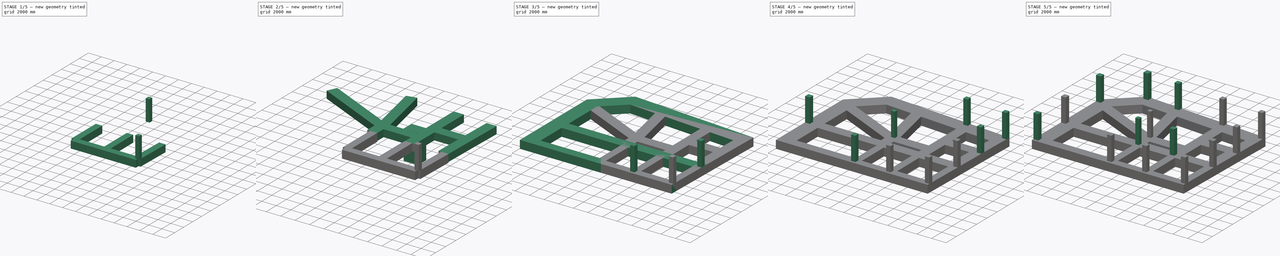
[diagram: build sequence overview — one tinted view per stage of 5, left to right]
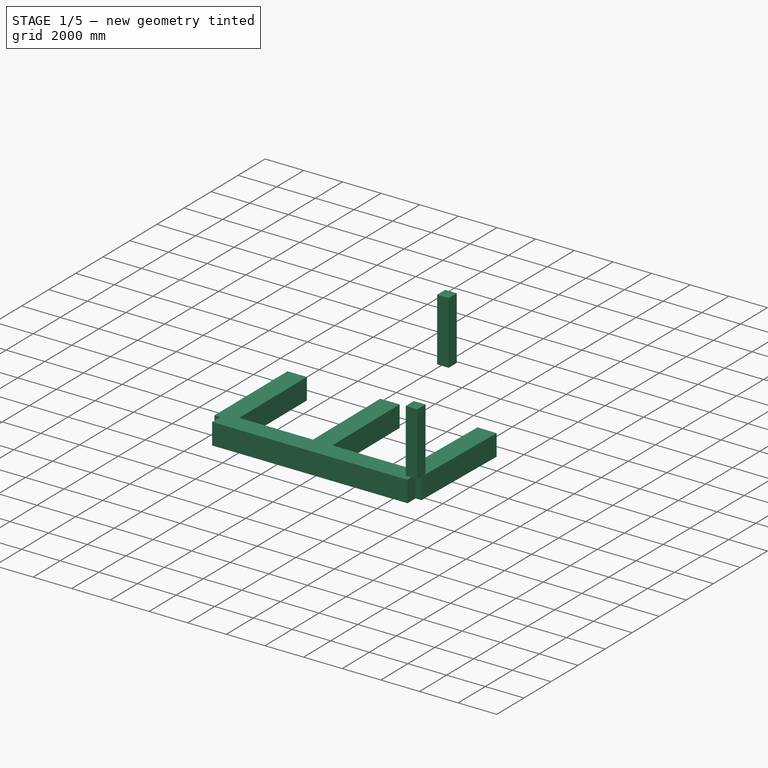
[diagram: stage 1 of 5 — iso view after this stage's code; geometry added in this stage tinted green]
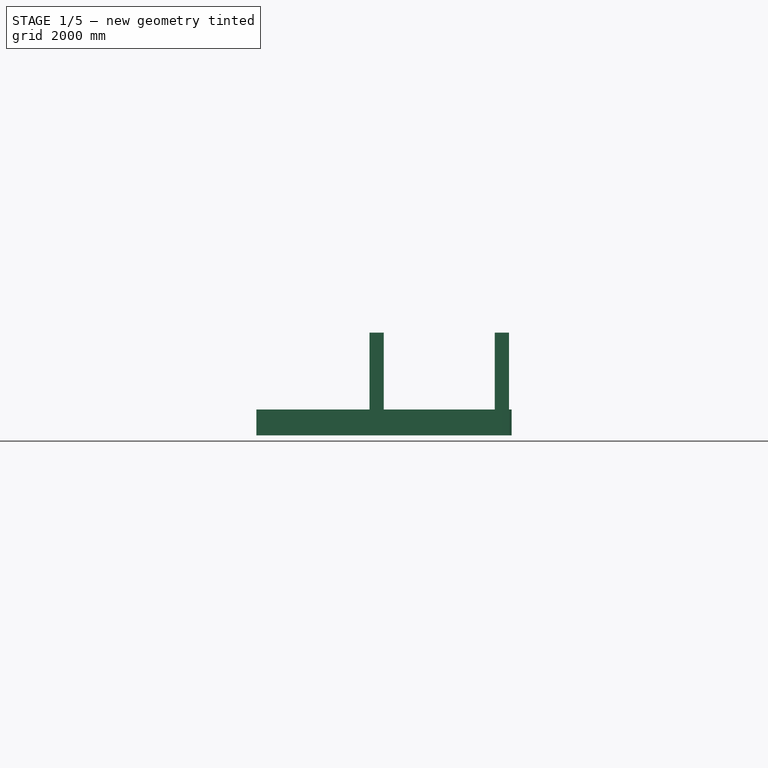
[diagram: stage 1 of 5 — front view after this stage's code; geometry added in this stage tinted green]
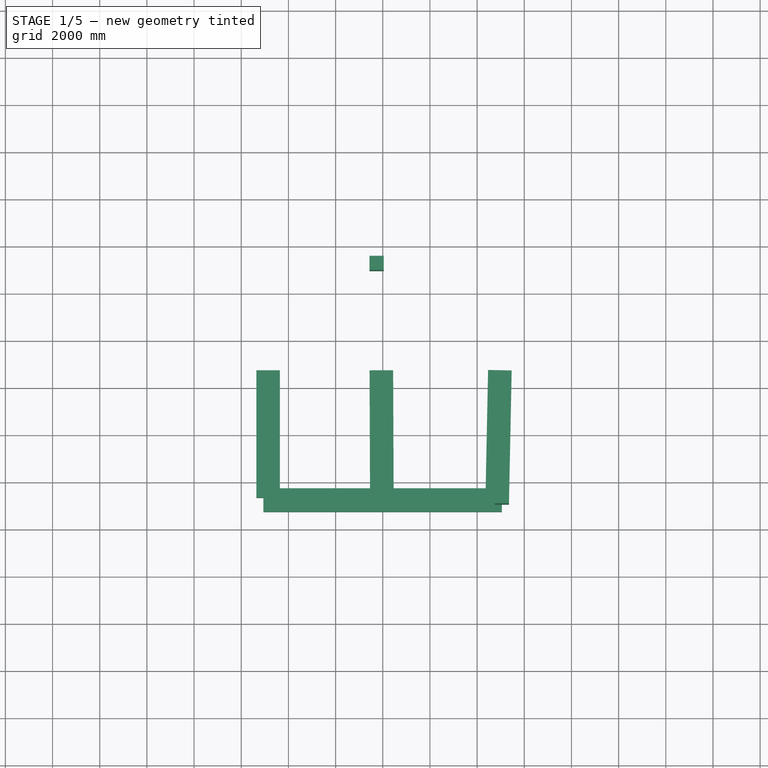
[diagram: stage 1 of 5 — top view after this stage's code; geometry added in this stage tinted green]
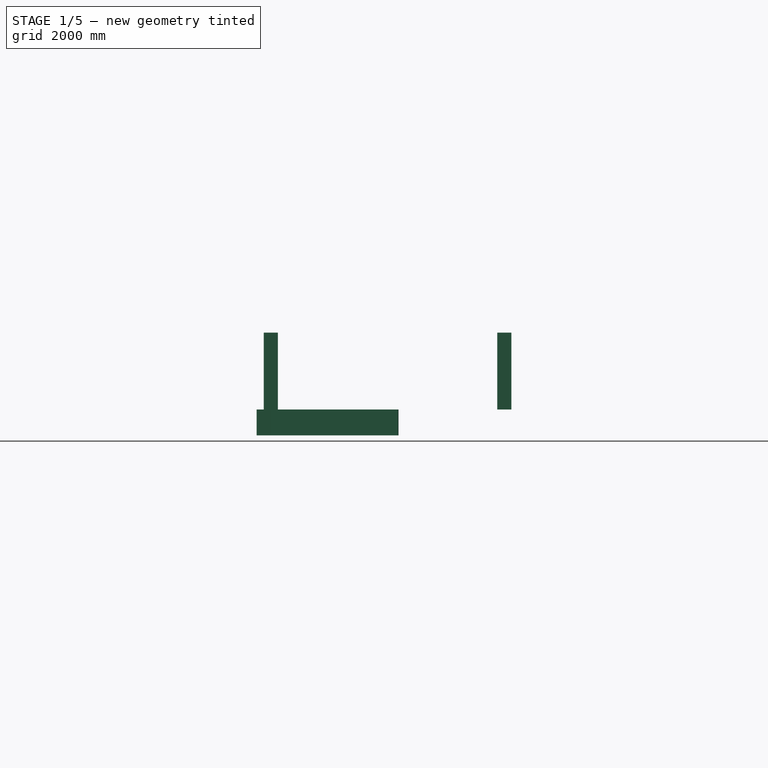
[diagram: stage 1 of 5 — right view after this stage's code; geometry added in this stage tinted green]
FCSTD DOCUMENT  (FreeCAD 1.0R1234)
Label: foun7
License: All rights reserved
LicenseURL: http://en.wikipedia.org/wiki/All_rights_reserved
objects: Part::Feature×256, Part::Part2DObjectPython×81, Part::FeaturePython×58, App::FeaturePython×40, App::DocumentObjectGroup×5, Sketcher::SketchObject×1, App::DocumentObjectGroupPython×1
note: 560 computed .brp shape members not serialized (recipe doc carries the construction recipe); baked Part::Feature solids carry a one-line shape summary decoded from their .brp

FEATURE [Part::Part2DObjectPython] Line012  label="C13_Story1_CenterLine"  # Draft 2D object (typed FeaturePython)
  Area = 0
  ChamferSize = 0
  Closed = false
  End = (17740,15250,3260)
  FilletRadius = 0
  Length = 3260
  MakeFace = true
  Points = (2) [(17740,15250,0),(17740,15250,3260)]
  Start = (17740,15250,0)
  Subdivisions = 0
FEATURE [Part::FeaturePython] Structure012  label="C13_Story1"  # Arch/BIM 24 (typed FeaturePython)
  AttacherType = Attacher::AttachEngine3D
  AttachmentOffset = pos=(0,0,0) rot=(0,0,1;1.5708rad)
  Base = -> C6012C
  BaseMirror = false
  BaseOffsetX = 0
  BaseOffsetY = 0
  BasePerpendicularToTool = false
  BaseRotation = 0
  ComputedLength = 3260
  FaceMaker = 0
  Height = 3260
  HorizontalArea = 360000
  IfcData = attributes={"GlobalId": {"name": "GlobalId", "type": "IfcGloballyUniqueId", "is_enum": false, "enum_values": []}, "Description": {"... (+438 chars omitted),+1 more (map truncated)
  IfcType = 24
  Length = 0
  MapMode = 7
  MoveBase = false
  MoveWithHost = false
  Nodes = (2) [(17740,15250,0),(17740,15250,3260)]
  NodesOffset = 0
  Normal = (0,0,0)
  PerimeterLength = 2400
  Placement = pos=(17740,15250,0) rot=(0,0,1;1.5708rad)
  PredefinedType = 0
  Support = -> [Line012]
  ToolOffsetFirst = 0
  ToolOffsetLast = 0
  VerticalArea = 7.824e+06
  Width = 200
  combos_load = Combo1 Max=2553.8525, -8711.59, 179.84,Combo10 Max=2026.2707, -203711.96, -490434.46,Combo11 Max=2039.5155, -168942.87, -475806.29,+37 more (map truncated)
FEATURE [Part::FeaturePython] Structure006  label="C7_Story1"  # Arch/BIM 24 (typed FeaturePython)
  AttacherType = Attacher::AttachEngine3D
  AttachmentOffset = pos=(0,0,0) rot=(0,0,1;1.5708rad)
  Base = -> C6012A001
  BaseMirror = false
  BaseOffsetX = 0
  BaseOffsetY = 0
  BasePerpendicularToTool = false
  BaseRotation = 0
  ComputedLength = 3260
  FaceMaker = 0
  Height = 3260
  HorizontalArea = 360000
  IfcData = attributes={"GlobalId": {"name": "GlobalId", "type": "IfcGloballyUniqueId", "is_enum": false, "enum_values": []}, "Description": {"... (+438 chars omitted),+1 more (map truncated)
  IfcType = 24
  Length = 0
  MapMode = 7
  MoveBase = false
  MoveWithHost = false
  Nodes = (2) [(23050,5350,0),(23050,5350,3260)]
  NodesOffset = 0
  Normal = (0,0,0)
  PerimeterLength = 2400
  Placement = pos=(23050,5350,0) rot=(0,0,1;1.5708rad)
  PredefinedType = 0
  Support = -> [Line006]
  ToolOffsetFirst = 0
  ToolOffsetLast = 0
  VerticalArea = 7.824e+06
  Width = 200
  combos_load = Combo1 Max=1070.89, -14227.9, -34906.53,Combo10 Max=1648.9411, -201194.19, -441368.63,Combo11 Max=1669.4764, -129214.75, -505589.83,+37 more (map truncated)
FEATURE [App::DocumentObjectGroup] Columns001
  Group = -> [Structure,Structure001,Structure002,Structure003,Structure004,Structure005,Structure006,Structure007,Structure008,Structure009,Structure010,Structure011,Structure012,Structure013,Structure014,Structure015]
FEATURE [App::FeaturePython] Safe001  # WARN: FeaturePython — macro-defined, semantics opaque (R4)
  input = <path>
  output = <path>
FEATURE [App::FeaturePython] Layer002  label="DEFPOINTS"  # WARN: FeaturePython — macro-defined, semantics opaque (R4)
FEATURE [App::FeaturePython] Layer004  label="DIM"  # WARN: FeaturePython — macro-defined, semantics opaque (R4)
FEATURE [App::FeaturePython] Layer005  label="AX"  # WARN: FeaturePython — macro-defined, semantics opaque (R4)
FEATURE [App::FeaturePython] Layer007  label="TEXT"  # WARN: FeaturePython — macro-defined, semantics opaque (R4)
FEATURE [App::FeaturePython] Layer008  label="WALL"  # WARN: FeaturePython — macro-defined, semantics opaque (R4)
FEATURE [App::FeaturePython] Layer012  label="8"  # WARN: FeaturePython — macro-defined, semantics opaque (R4)
FEATURE [App::FeaturePython] Layer014  label="Hach"  # WARN: FeaturePython — macro-defined, semantics opaque (R4)
FEATURE [App::FeaturePython] Layer015  label="red"  # WARN: FeaturePython — macro-defined, semantics opaque (R4)
FEATURE [App::FeaturePython] Layer017  label="DOOR"  # WARN: FeaturePython — macro-defined, semantics opaque (R4)
FEATURE [App::FeaturePython] Layer018  label="02"  # WARN: FeaturePython — macro-defined, semantics opaque (R4)
FEATURE [App::FeaturePython] Layer019  label="HARIM P"  # WARN: FeaturePython — macro-defined, semantics opaque (R4)
FEATURE [App::FeaturePython] Layer020  label="K"  # WARN: FeaturePython — macro-defined, semantics opaque (R4)
FEATURE [App::FeaturePython] Layer021  label="22"  # WARN: FeaturePython — macro-defined, semantics opaque (R4)
FEATURE [Part::Feature] Line062
  shape: bbox 2e-07 x 17820 x 2e-07 mm, 0 faces, 0 solids (baked)
FEATURE [Part::Feature] Line063
  shape: bbox 2e-07 x 14040 x 2e-07 mm, 0 faces, 0 solids (baked)
FEATURE [Part::Feature] Line064
  shape: bbox 4035 x 3738 x 2e-07 mm, 0 faces, 0 solids (baked)
FEATURE [Part::Feature] Line065
  shape: bbox 1040 x 963.4 x 2e-07 mm, 0 faces, 0 solids (baked)
FEATURE [Part::Feature] Line066
  shape: bbox 2867 x 2656 x 2e-07 mm, 0 faces, 0 solids (baked)
FEATURE [Part::Feature] Line067
  shape: bbox 17070 x 1308 x 2e-07 mm, 0 faces, 0 solids (baked)
FEATURE [Part::Feature] Line068
  shape: bbox 2033 x 155.8 x 2e-07 mm, 0 faces, 0 solids (baked)
FEATURE [Part::Feature] Line069
  shape: bbox 12700 x 973 x 2e-07 mm, 0 faces, 0 solids (baked)
FEATURE [Part::Feature] Line070
  shape: bbox 2153 x 165 x 2e-07 mm, 0 faces, 0 solids (baked)
FEATURE [Part::Feature] Line071
  shape: bbox 417.1 x 20250 x 2e-07 mm, 0 faces, 0 solids (baked)
FEATURE [Part::Feature] Line072
  shape: bbox 32.09 x 1558 x 2e-07 mm, 0 faces, 0 solids (baked)
FEATURE [Part::Feature] Line073
  shape: bbox 34.6 x 1680 x 2e-07 mm, 0 faces, 0 solids (baked)
FEATURE [Part::Feature] Line074
  shape: bbox 31.3 x 1520 x 2e-07 mm, 0 faces, 0 solids (baked)
FEATURE [Part::Feature] Line075
  shape: bbox 313 x 15200 x 2e-07 mm, 0 faces, 0 solids (baked)
FEATURE [Part::Feature] Line076
  shape: bbox 20690 x 2e-07 x 2e-07 mm, 0 faces, 0 solids (baked)
FEATURE [Part::Feature] Line077
  shape: bbox 20500 x 2e-07 x 2e-07 mm, 0 faces, 0 solids (baked)
FEATURE [Part::Feature] Line078
  shape: bbox 2e-07 x 1500 x 2e-07 mm, 0 faces, 0 solids (baked)
FEATURE [Part::Feature] Line079
  shape: bbox 20850 x 2e-07 x 2e-07 mm, 0 faces, 0 solids (baked)
FEATURE [App::FeaturePython] Layer013  label="NMA"  # WARN: FeaturePython — macro-defined, semantics opaque (R4)
  Group = -> [Line079]
FEATURE [Part::Feature] Line080
  shape: bbox 2e-07 x 1600 x 2e-07 mm, 0 faces, 0 solids (baked)
FEATURE [Part::Feature] Line081
  shape: bbox 282.9 x 2e-07 x 2e-07 mm, 0 faces, 0 solids (baked)
FEATURE [Part::Feature] Line082
  shape: bbox 1583 x 2e-07 x 2e-07 mm, 0 faces, 0 solids (baked)
FEATURE [Part::Feature] Line083
  shape: bbox 817.1 x 2e-07 x 2e-07 mm, 0 faces, 0 solids (baked)
FEATURE [Part::Feature] Line084
  shape: bbox 4.768 x 2e-07 x 2e-07 mm, 0 faces, 0 solids (baked)
FEATURE [Part::Feature] Line085
  shape: bbox 2e-07 x 2500 x 2e-07 mm, 0 faces, 0 solids (baked)
FEATURE [Part::Feature] Line086
  shape: bbox 3240 x 2e-07 x 2e-07 mm, 0 faces, 0 solids (baked)
FEATURE [Part::Feature] Line087
  shape: bbox 4600 x 2e-07 x 2e-07 mm, 0 faces, 0 solids (baked)
FEATURE [Part::Feature] Line088
  shape: bbox 2000 x 2e-07 x 2e-07 mm, 0 faces, 0 solids (baked)
FEATURE [Part::Feature] Line089
  shape: bbox 699.3 x 2e-07 x 2e-07 mm, 0 faces, 0 solids (baked)
FEATURE [Part::Feature] Line090
  shape: bbox 2000 x 2e-07 x 2e-07 mm, 0 faces, 0 solids (baked)
FEATURE [Part::Feature] Line091
  shape: bbox 3250 x 2e-07 x 2e-07 mm, 0 faces, 0 solids (baked)
FEATURE [Part::Feature] Line092
  shape: bbox 2e-07 x 2500 x 2e-07 mm, 0 faces, 0 solids (baked)
FEATURE [Part::Feature] Line093
  shape: bbox 1250 x 2e-07 x 2e-07 mm, 0 faces, 0 solids (baked)
FEATURE [Part::Feature] Line094
  shape: bbox 2e-07 x 2500 x 2e-07 mm, 0 faces, 0 solids (baked)
FEATURE [Part::Feature] Line095 .. Line099  x5 (patterned run collapsed; names and placements below)
  shape: bbox 2e-07 x 1100 x 2e-07 mm, 0 faces, 0 solids (baked)
FEATURE [Part::Feature] Line100
  shape: bbox 2e-07 x 1300 x 2e-07 mm, 0 faces, 0 solids (baked)
FEATURE [Part::Feature] Line101
  shape: bbox 2e-07 x 1100 x 2e-07 mm, 0 faces, 0 solids (baked)
FEATURE [Part::Feature] Line102
  shape: bbox 2e-07 x 1100 x 2e-07 mm, 0 faces, 0 solids (baked)
FEATURE [Part::Feature] Line103
  shape: bbox 2e-07 x 1100 x 2e-07 mm, 0 faces, 0 solids (baked)
FEATURE [Part::Feature] Line104
  shape: bbox 2000 x 2e-07 x 2e-07 mm, 0 faces, 0 solids (baked)
FEATURE [Part::Feature] Line105
  shape: bbox 0.357 x 500 x 2e-07 mm, 0 faces, 0 solids (baked)
FEATURE [Part::Feature] Line106
  shape: bbox 282.9 x 2e-07 x 2e-07 mm, 0 faces, 0 solids (baked)
FEATURE [Part::Feature] Line107
  shape: bbox 2000 x 2e-07 x 2e-07 mm, 0 faces, 0 solids (baked)
FEATURE [Part::Feature] Line108
  shape: bbox 200.4 x 2e-07 x 2e-07 mm, 0 faces, 0 solids (baked)
FEATURE [Part::Feature] Line109
  shape: bbox 2000 x 2e-07 x 2e-07 mm, 0 faces, 0 solids (baked)
FEATURE [Part::Feature] Line110
  shape: bbox 2e-07 x 200 x 2e-07 mm, 0 faces, 0 solids (baked)
FEATURE [Part::Feature] Line111
  shape: bbox 18.82 x 2e-07 x 2e-07 mm, 0 faces, 0 solids (baked)
FEATURE [Part::Feature] Line112
  shape: bbox 1050 x 2e-07 x 2e-07 mm, 0 faces, 0 solids (baked)
FEATURE [Part::Feature] Line113
  shape: bbox 289.3 x 2e-07 x 2e-07 mm, 0 faces, 0 solids (baked)
FEATURE [Part::Feature] Line114
  shape: bbox 617.1 x 0.221 x 2e-07 mm, 0 faces, 0 solids (baked)
FEATURE [Part::Feature] Line115
  shape: bbox 282.9 x 2e-07 x 2e-07 mm, 0 faces, 0 solids (baked)
FEATURE [Part::Feature] Line116
  shape: bbox 2e-07 x 300 x 2e-07 mm, 0 faces, 0 solids (baked)
FEATURE [Part::Feature] Line117
  shape: bbox 169.4 x 2e-07 x 2e-07 mm, 0 faces, 0 solids (baked)
FEATURE [Part::Feature] Line118
  shape: bbox 2e-07 x 1106 x 2e-07 mm, 0 faces, 0 solids (baked)
FEATURE [Part::Feature] Line119
  shape: bbox 169.4 x 2e-07 x 2e-07 mm, 0 faces, 0 solids (baked)
FEATURE [Part::Feature] Line120
  shape: bbox 2e-07 x 1106 x 2e-07 mm, 0 faces, 0 solids (baked)
FEATURE [Part::Feature] Line121
  shape: bbox 2e-07 x 63.54 x 2e-07 mm, 0 faces, 0 solids (baked)
FEATURE [Part::Feature] Line122
  shape: bbox 2e-07 x 15.13 x 2e-07 mm, 0 faces, 0 solids (baked)
FEATURE [Part::Feature] Line123
  shape: bbox 2e-07 x 15.13 x 2e-07 mm, 0 faces, 0 solids (baked)
FEATURE [Part::Feature] Line124
  shape: bbox 2e-07 x 63.54 x 2e-07 mm, 0 faces, 0 solids (baked)
FEATURE [Part::Feature] Line125
  shape: bbox 48.41 x 2e-07 x 2e-07 mm, 0 faces, 0 solids (baked)
FEATURE [Part::Feature] Line126
  shape: bbox 48.41 x 2e-07 x 2e-07 mm, 0 faces, 0 solids (baked)
FEATURE [Part::Feature] Line127
  shape: bbox 0.005 x 24.98 x 2e-07 mm, 0 faces, 0 solids (baked)
FEATURE [Part::Feature] Line128
  shape: bbox 0.004 x 25.01 x 2e-07 mm, 0 faces, 0 solids (baked)
FEATURE [Part::Feature] Line129
  shape: bbox 48.41 x 2e-07 x 2e-07 mm, 0 faces, 0 solids (baked)
FEATURE [Part::Feature] Line130
  shape: bbox 2e-07 x 60.52 x 2e-07 mm, 0 faces, 0 solids (baked)
FEATURE [Part::Feature] Line131
  shape: bbox 202.3 x 2e-07 x 2e-07 mm, 0 faces, 0 solids (baked)
FEATURE [Part::Feature] Line132
  shape: bbox 99.47 x 2e-07 x 2e-07 mm, 0 faces, 0 solids (baked)
FEATURE [Part::Feature] Line133
  shape: bbox 48.41 x 2e-07 x 2e-07 mm, 0 faces, 0 solids (baked)
FEATURE [Part::Feature] Line134
  shape: bbox 2e-07 x 60.52 x 2e-07 mm, 0 faces, 0 solids (baked)
FEATURE [Part::Feature] Line135
  shape: bbox 202.3 x 2e-07 x 2e-07 mm, 0 faces, 0 solids (baked)
FEATURE [Part::Feature] Line136
  shape: bbox 99.47 x 2e-07 x 2e-07 mm, 0 faces, 0 solids (baked)
FEATURE [Part::Feature] Line137
  shape: bbox 2e-07 x 1473 x 2e-07 mm, 0 faces, 0 solids (baked)
FEATURE [Part::Feature] Line138
  shape: bbox 260.3 x 2e-07 x 2e-07 mm, 0 faces, 0 solids (baked)
FEATURE [Part::Feature] Line139
  shape: bbox 42.36 x 2e-07 x 2e-07 mm, 0 faces, 0 solids (baked)
FEATURE [Part::Feature] Line140
  shape: bbox 42.36 x 2e-07 x 2e-07 mm, 0 faces, 0 solids (baked)
FEATURE [Part::Feature] Line141
  shape: bbox 3.628 x 3.801 x 2e-07 mm, 0 faces, 0 solids (baked)
FEATURE [Part::Feature] Line142
  shape: bbox 2e-07 x 3.631 x 2e-07 mm, 0 faces, 0 solids (baked)
FEATURE [Part::Feature] Line143
  shape: bbox 3.627 x 3.801 x 2e-07 mm, 0 faces, 0 solids (baked)
FEATURE [Part::Feature] Line144
  shape: bbox 2e-07 x 3.631 x 2e-07 mm, 0 faces, 0 solids (baked)
FEATURE [Part::Feature] Line145
  shape: bbox 1.816 x 1.764 x 2e-07 mm, 0 faces, 0 solids (baked)
FEATURE [Part::Feature] Line146
  shape: bbox 1.815 x 1.878 x 2e-07 mm, 0 faces, 0 solids (baked)
FEATURE [Part::Feature] Line147
  shape: bbox 2.293 x 2.43 x 2e-07 mm, 0 faces, 0 solids (baked)
FEATURE [Part::Feature] Line148
  shape: bbox 1.957 x 2.171 x 2e-07 mm, 0 faces, 0 solids (baked)
FEATURE [Part::Feature] Line149
  shape: bbox 2e-07 x 25.7 x 2e-07 mm, 0 faces, 0 solids (baked)
FEATURE [Part::Feature] Line150
  shape: bbox 2e-07 x 25.57 x 2e-07 mm, 0 faces, 0 solids (baked)
FEATURE [Part::Feature] Line151
  shape: bbox 32.81 x 1.538 x 2e-07 mm, 0 faces, 0 solids (baked)
FEATURE [Part::Feature] Line152
  shape: bbox 33.15 x 1.554 x 2e-07 mm, 0 faces, 0 solids (baked)
FEATURE [Part::Feature] Line153
  shape: bbox 48.41 x 2e-07 x 2e-07 mm, 0 faces, 0 solids (baked)
FEATURE [Part::Feature] Line154
  shape: bbox 2e-07 x 48.41 x 2e-07 mm, 0 faces, 0 solids (baked)
FEATURE [Part::Feature] Line155
  shape: bbox 163.4 x 2e-07 x 2e-07 mm, 0 faces, 0 solids (baked)
FEATURE [Part::Feature] Line156
  shape: bbox 2e-07 x 48.41 x 2e-07 mm, 0 faces, 0 solids (baked)
FEATURE [Part::Feature] Line157
  shape: bbox 48.41 x 2e-07 x 2e-07 mm, 0 faces, 0 solids (baked)
FEATURE [Part::Feature] Line158
  shape: bbox 3.631 x 2e-07 x 2e-07 mm, 0 faces, 0 solids (baked)
FEATURE [Part::Feature] Line159
  shape: bbox 2e-07 x 44.78 x 2e-07 mm, 0 faces, 0 solids (baked)
FEATURE [Part::Feature] Line160
  shape: bbox 3.631 x 2e-07 x 2e-07 mm, 0 faces, 0 solids (baked)
FEATURE [Part::Feature] Line161
  shape: bbox 2e-07 x 44.78 x 2e-07 mm, 0 faces, 0 solids (baked)
FEATURE [Part::Feature] Line162
  shape: bbox 156.1 x 2e-07 x 2e-07 mm, 0 faces, 0 solids (baked)
FEATURE [Part::Feature] Line163
  shape: bbox 27.23 x 2e-07 x 2e-07 mm, 0 faces, 0 solids (baked)
FEATURE [Part::Feature] Line164
  shape: bbox 27.23 x 2e-07 x 2e-07 mm, 0 faces, 0 solids (baked)
FEATURE [Part::Feature] Line165
  shape: bbox 3.026 x 2e-07 x 2e-07 mm, 0 faces, 0 solids (baked)
FEATURE [Part::Feature] Line166
  shape: bbox 3.026 x 2e-07 x 2e-07 mm, 0 faces, 0 solids (baked)
FEATURE [Part::Feature] Line167
  shape: bbox 3.631 x 3.631 x 2e-07 mm, 0 faces, 0 solids (baked)
FEATURE [Part::Feature] Line168
  shape: bbox 3.631 x 3.631 x 2e-07 mm, 0 faces, 0 solids (baked)
FEATURE [Part::Feature] Line169
  shape: bbox 2e-07 x 44.78 x 2e-07 mm, 0 faces, 0 solids (baked)
FEATURE [Part::Feature] Line170
  shape: bbox 2e-07 x 44.78 x 2e-07 mm, 0 faces, 0 solids (baked)
FEATURE [Part::Feature] Line171
  shape: bbox 2.421 x 2.421 x 2e-07 mm, 0 faces, 0 solids (baked)
FEATURE [Part::Feature] Line172
  shape: bbox 18.16 x 2e-07 x 2e-07 mm, 0 faces, 0 solids (baked)
FEATURE [Part::Feature] Line173
  shape: bbox 2e-07 x 3.631 x 2e-07 mm, 0 faces, 0 solids (baked)
FEATURE [Part::Feature] Line174
  shape: bbox 2.421 x 2.421 x 2e-07 mm, 0 faces, 0 solids (baked)
FEATURE [Part::Feature] Line175
  shape: bbox 18.16 x 2e-07 x 2e-07 mm, 0 faces, 0 solids (baked)
FEATURE [Part::Feature] Line176
  shape: bbox 2e-07 x 3.631 x 2e-07 mm, 0 faces, 0 solids (baked)
FEATURE [Part::Feature] Line177
  shape: bbox 27.23 x 2e-07 x 2e-07 mm, 0 faces, 0 solids (baked)
FEATURE [Part::Feature] Line178
  shape: bbox 27.23 x 2e-07 x 2e-07 mm, 0 faces, 0 solids (baked)
FEATURE [Part::Feature] Line179
  shape: bbox 3.026 x 2e-07 x 2e-07 mm, 0 faces, 0 solids (baked)
FEATURE [Part::Feature] Line180
  shape: bbox 3.026 x 2e-07 x 2e-07 mm, 0 faces, 0 solids (baked)
FEATURE [Part::Feature] Line181
  shape: bbox 3.631 x 3.631 x 2e-07 mm, 0 faces, 0 solids (baked)
FEATURE [Part::Feature] Line182
  shape: bbox 3.631 x 3.631 x 2e-07 mm, 0 faces, 0 solids (baked)
FEATURE [Part::Feature] Line183
  shape: bbox 2e-07 x 44.78 x 2e-07 mm, 0 faces, 0 solids (baked)
FEATURE [Part::Feature] Line184
  shape: bbox 2e-07 x 44.78 x 2e-07 mm, 0 faces, 0 solids (baked)
FEATURE [Part::Feature] Line185
  shape: bbox 2.421 x 2.421 x 2e-07 mm, 0 faces, 0 solids (baked)
FEATURE [Part::Feature] Line186
  shape: bbox 18.16 x 2e-07 x 2e-07 mm, 0 faces, 0 solids (baked)
FEATURE [Part::Feature] Line187
  shape: bbox 2e-07 x 3.631 x 2e-07 mm, 0 faces, 0 solids (baked)
FEATURE [Part::Feature] Line188
  shape: bbox 2.421 x 2.421 x 2e-07 mm, 0 faces, 0 solids (baked)
FEATURE [Part::Feature] Line189
  shape: bbox 18.16 x 2e-07 x 2e-07 mm, 0 faces, 0 solids (baked)
FEATURE [Part::Feature] Line190
  shape: bbox 2e-07 x 3.631 x 2e-07 mm, 0 faces, 0 solids (baked)
FEATURE [Part::Feature] Line191
  shape: bbox 2e-07 x 1048 x 2e-07 mm, 0 faces, 0 solids (baked)
FEATURE [Part::Feature] Line192
  shape: bbox 196.5 x 2e-07 x 2e-07 mm, 0 faces, 0 solids (baked)
FEATURE [Part::Feature] Line193
  shape: bbox 196.5 x 2e-07 x 2e-07 mm, 0 faces, 0 solids (baked)
FEATURE [Part::Feature] Line194
  shape: bbox 200.4 x 0.071 x 2e-07 mm, 0 faces, 0 solids (baked)
FEATURE [Part::Feature] Line195 .. Line198  x4 (patterned run collapsed; names and placements below)
  shape: bbox 2e-07 x 1100 x 2e-07 mm, 0 faces, 0 solids (baked)
FEATURE [Part::Feature] Line199
  shape: bbox 2e-07 x 200 x 2e-07 mm, 0 faces, 0 solids (baked)
FEATURE [Part::Feature] Line200
  shape: bbox 50 x 2e-07 x 2e-07 mm, 0 faces, 0 solids (baked)
FEATURE [Part::Feature] Line201
  shape: bbox 2e-07 x 4699 x 2e-07 mm, 0 faces, 0 solids (baked)
FEATURE [Part::Feature] Line202
  shape: bbox 617.1 x 2e-07 x 2e-07 mm, 0 faces, 0 solids (baked)
FEATURE [Part::Feature] Line203
  shape: bbox 1383 x 0.221 x 2e-07 mm, 0 faces, 0 solids (baked)
FEATURE [Part::Feature] Line204
  shape: bbox 1060 x 2e-07 x 2e-07 mm, 0 faces, 0 solids (baked)
FEATURE [Part::Feature] Line205
  shape: bbox 2e-07 x 2500 x 2e-07 mm, 0 faces, 0 solids (baked)
FEATURE [Part::Feature] Line206
  shape: bbox 2e-07 x 2899 x 2e-07 mm, 0 faces, 0 solids (baked)
FEATURE [Part::Feature] Line207
  shape: bbox 2100 x 2e-07 x 2e-07 mm, 0 faces, 0 solids (baked)
FEATURE [Part::Feature] Line208
  shape: bbox 2656 x 2e-07 x 2e-07 mm, 0 faces, 0 solids (baked)
FEATURE [Part::Feature] Line209
  shape: bbox 163.6 x 2e-07 x 2e-07 mm, 0 faces, 0 solids (baked)
FEATURE [Part::Feature] Line210
  shape: bbox 2e-07 x 1806 x 2e-07 mm, 0 faces, 0 solids (baked)
FEATURE [Part::Feature] Line211
  shape: bbox 3492 x 2e-07 x 2e-07 mm, 0 faces, 0 solids (baked)
FEATURE [Part::Feature] Line212
  shape: bbox 50 x 2e-07 x 2e-07 mm, 0 faces, 0 solids (baked)
FEATURE [Part::Feature] Line213
  shape: bbox 2e-07 x 200 x 2e-07 mm, 0 faces, 0 solids (baked)
FEATURE [Part::Feature] Line214
  shape: bbox 48.82 x 2e-07 x 2e-07 mm, 0 faces, 0 solids (baked)
FEATURE [Part::Feature] Line215
  shape: bbox 2e-07 x 200 x 2e-07 mm, 0 faces, 0 solids (baked)
FEATURE [Part::Feature] Line216 .. Line220  x5 (patterned run collapsed; names and placements below)
  shape: bbox 2e-07 x 1100 x 2e-07 mm, 0 faces, 0 solids (baked)
FEATURE [Part::Feature] Line221
  shape: bbox 201.2 x 2e-07 x 2e-07 mm, 0 faces, 0 solids (baked)
FEATURE [Part::Feature] Line222
  shape: bbox 2e-07 x 2100 x 2e-07 mm, 0 faces, 0 solids (baked)
FEATURE [Part::Feature] Line223
  shape: bbox 2e-07 x 100 x 2e-07 mm, 0 faces, 0 solids (baked)
FEATURE [Part::Feature] Line224
  shape: bbox 2e-07 x 2200 x 2e-07 mm, 0 faces, 0 solids (baked)
FEATURE [Part::Feature] Line225
  shape: bbox 2e-07 x 200 x 2e-07 mm, 0 faces, 0 solids (baked)
FEATURE [Part::Feature] Line226
  shape: bbox 200 x 2e-07 x 2e-07 mm, 0 faces, 0 solids (baked)
FEATURE [Part::Feature] Line227
  shape: bbox 1200 x 0.005 x 2e-07 mm, 0 faces, 0 solids (baked)
FEATURE [Part::Feature] Line228
  shape: bbox 2207 x 2e-07 x 2e-07 mm, 0 faces, 0 solids (baked)
FEATURE [Part::Feature] Line229
  shape: bbox 100 x 2e-07 x 2e-07 mm, 0 faces, 0 solids (baked)
FEATURE [Part::Feature] Line230
  shape: bbox 1000 x 2e-07 x 2e-07 mm, 0 faces, 0 solids (baked)
FEATURE [Part::Feature] Line231
  shape: bbox 100 x 2e-07 x 2e-07 mm, 0 faces, 0 solids (baked)
FEATURE [Part::Feature] Line232
  shape: bbox 2107 x 2e-07 x 2e-07 mm, 0 faces, 0 solids (baked)
FEATURE [Part::Feature] Line233
  shape: bbox 2e-07 x 3200 x 2e-07 mm, 0 faces, 0 solids (baked)
FEATURE [Part::Feature] Line234
  shape: bbox 2e-07 x 3000 x 2e-07 mm, 0 faces, 0 solids (baked)
FEATURE [Part::Feature] Line235
  shape: bbox 3207 x 2e-07 x 2e-07 mm, 0 faces, 0 solids (baked)
FEATURE [Part::Feature] Line236
  shape: bbox 1900 x 2e-07 x 2e-07 mm, 0 faces, 0 solids (baked)
FEATURE [Part::Feature] Line237
  shape: bbox 1900 x 2e-07 x 2e-07 mm, 0 faces, 0 solids (baked)
FEATURE [Part::Feature] Line238
  shape: bbox 1100 x 2e-07 x 2e-07 mm, 0 faces, 0 solids (baked)
FEATURE [Part::Feature] Line239
  shape: bbox 2e-07 x 707.7 x 2e-07 mm, 0 faces, 0 solids (baked)
FEATURE [Part::Feature] Line240
  shape: bbox 2e-07 x 800 x 2e-07 mm, 0 faces, 0 solids (baked)
FEATURE [Part::Feature] Line241
  shape: bbox 2e-07 x 1920 x 2e-07 mm, 0 faces, 0 solids (baked)
FEATURE [Part::Feature] Line242
  shape: bbox 968.7 x 2e-07 x 2e-07 mm, 0 faces, 0 solids (baked)
FEATURE [Part::Feature] Line243
  shape: bbox 200 x 2e-07 x 2e-07 mm, 0 faces, 0 solids (baked)
FEATURE [Part::Feature] Line244
  shape: bbox 970.7 x 2e-07 x 2e-07 mm, 0 faces, 0 solids (baked)
FEATURE [Part::Feature] Line245
  shape: bbox 100 x 2e-07 x 2e-07 mm, 0 faces, 0 solids (baked)
FEATURE [Part::Feature] Line246
  shape: bbox 2e-07 x 1620 x 2e-07 mm, 0 faces, 0 solids (baked)
FEATURE [Part::Feature] Line247
  shape: bbox 2e-07 x 100 x 2e-07 mm, 0 faces, 0 solids (baked)
FEATURE [Part::Feature] Line248
  shape: bbox 2e-07 x 600 x 2e-07 mm, 0 faces, 0 solids (baked)
FEATURE [Part::Feature] Line249
  shape: bbox 2e-07 x 100 x 2e-07 mm, 0 faces, 0 solids (baked)
FEATURE [Part::Feature] Line250
  shape: bbox 2e-07 x 700 x 2e-07 mm, 0 faces, 0 solids (baked)
FEATURE [Part::Feature] Line251
  shape: bbox 5407 x 2e-07 x 2e-07 mm, 0 faces, 0 solids (baked)
FEATURE [Part::Feature] Line252
  shape: bbox 15500 x 2e-07 x 2e-07 mm, 0 faces, 0 solids (baked)
FEATURE [Part::Feature] Line255
  shape: bbox 2e-07 x 3500 x 2e-07 mm, 0 faces, 0 solids (baked)
FEATURE [Part::Feature] Line269
  shape: bbox 271.9 x 475.9 x 2e-07 mm, 0 faces, 0 solids (baked)
FEATURE [Part::Feature] Line287
  shape: bbox 495.7 x 867.4 x 2e-07 mm, 0 faces, 0 solids (baked)
FEATURE [Part::Feature] Line288
  shape: bbox 495.7 x 867.4 x 2e-07 mm, 0 faces, 0 solids (baked)
FEATURE [App::FeaturePython] Layer010  label="9"  # WARN: FeaturePython — macro-defined, semantics opaque (R4)
  Group = -> [Line252,Line255,Line269,Line287,Line288]
FEATURE [Part::Feature] Line289
  shape: bbox 200 x 2e-07 x 2e-07 mm, 0 faces, 0 solids (baked)
FEATURE [Part::Feature] Line290
  shape: bbox 2e-07 x 3500 x 2e-07 mm, 0 faces, 0 solids (baked)
FEATURE [Part::Feature] Line291
  shape: bbox 2e-07 x 3500 x 2e-07 mm, 0 faces, 0 solids (baked)
FEATURE [Part::Feature] Line292
  shape: bbox 2e-07 x 100 x 2e-07 mm, 0 faces, 0 solids (baked)
FEATURE [Part::Feature] Line293
  shape: bbox 2e-07 x 100 x 2e-07 mm, 0 faces, 0 solids (baked)
FEATURE [Part::Feature] Line294
  shape: bbox 1935 x 2e-07 x 2e-07 mm, 0 faces, 0 solids (baked)
FEATURE [Part::Feature] Line295
  shape: bbox 1933 x 2e-07 x 2e-07 mm, 0 faces, 0 solids (baked)
FEATURE [Part::Feature] Line296
  shape: bbox 1902 x 2e-07 x 2e-07 mm, 0 faces, 0 solids (baked)
FEATURE [Part::Feature] Line297
  shape: bbox 1900 x 2e-07 x 2e-07 mm, 0 faces, 0 solids (baked)
FEATURE [Part::Feature] Line298
  shape: bbox 2e-07 x 100 x 2e-07 mm, 0 faces, 0 solids (baked)
FEATURE [Part::Feature] Line299
  shape: bbox 2e-07 x 100 x 2e-07 mm, 0 faces, 0 solids (baked)
FEATURE [Part::Feature] Line300
  shape: bbox 2e-07 x 100 x 2e-07 mm, 0 faces, 0 solids (baked)
FEATURE [Part::Feature] Line301
  shape: bbox 100 x 2e-07 x 2e-07 mm, 0 faces, 0 solids (baked)
FEATURE [Part::Feature] Line302
  shape: bbox 100 x 2e-07 x 2e-07 mm, 0 faces, 0 solids (baked)
FEATURE [Part::Feature] Line303
  shape: bbox 2e-07 x 100 x 2e-07 mm, 0 faces, 0 solids (baked)
FEATURE [Part::Feature] Line304
  shape: bbox 100 x 2e-07 x 2e-07 mm, 0 faces, 0 solids (baked)
FEATURE [Part::Feature] Line305
  shape: bbox 100 x 2e-07 x 2e-07 mm, 0 faces, 0 solids (baked)
FEATURE [App::FeaturePython] Layer006  label="D"  # WARN: FeaturePython — macro-defined, semantics opaque (R4)
  Group = -> [Line062,Line063,Line064,Line065,Line066,Line067,Line068,Line069,Line070,Line071,Line072,Line073,Line074,Line075,Line076,Line077,Line221,Line239,Line240,Line241,Line242,Line243,Line244,Line245,Line246,Line247,Line248,Line249,Line250,Line294,Line295,Line296,Line297,Line298,Line299,Line300,Line301,Line302,Line303,Line304,Line305]
FEATURE [Part::Feature] Line306
  shape: bbox 2e-07 x 1500 x 2e-07 mm, 0 faces, 0 solids (baked)
FEATURE [Part::Feature] Line307
  shape: bbox 2e-07 x 1400 x 2e-07 mm, 0 faces, 0 solids (baked)
FEATURE [Part::Feature] Line308
  shape: bbox 2e-07 x 3000 x 2e-07 mm, 0 faces, 0 solids (baked)
FEATURE [Part::Feature] Line309
  shape: bbox 2e-07 x 100 x 2e-07 mm, 0 faces, 0 solids (baked)
FEATURE [Part::Feature] Line310
  shape: bbox 2e-07 x 100 x 2e-07 mm, 0 faces, 0 solids (baked)
FEATURE [Part::Feature] Line311
  shape: bbox 1900 x 2e-07 x 2e-07 mm, 0 faces, 0 solids (baked)
FEATURE [Part::Feature] Line312
  shape: bbox 1900 x 2e-07 x 2e-07 mm, 0 faces, 0 solids (baked)
FEATURE [Part::Feature] Line313
  shape: bbox 100 x 2e-07 x 2e-07 mm, 0 faces, 0 solids (baked)
FEATURE [Part::Feature] Line314
  shape: bbox 100 x 2e-07 x 2e-07 mm, 0 faces, 0 solids (baked)
FEATURE [Part::Feature] Line315
  shape: bbox 2e-07 x 620.5 x 2e-07 mm, 0 faces, 0 solids (baked)
FEATURE [Part::Feature] Line327
  shape: bbox 2e-07 x 600 x 2e-07 mm, 0 faces, 0 solids (baked)
FEATURE [Part::Feature] Line328
  shape: bbox 400 x 2e-07 x 2e-07 mm, 0 faces, 0 solids (baked)
FEATURE [Part::Feature] Line329
  shape: bbox 2e-07 x 600 x 2e-07 mm, 0 faces, 0 solids (baked)
FEATURE [Part::Feature] Polyline010
  shape: bbox 282.9 x 2e-07 x 2e-07 mm, 0 faces, 0 solids (baked)
FEATURE [Part::Feature] Polyline011
  shape: bbox 1660 x 1383 x 2e-07 mm, 0 faces, 0 solids (baked)
FEATURE [Part::Feature] Polyline012
  shape: bbox 1708 x 1432 x 2e-07 mm, 0 faces, 0 solids (baked)
FEATURE [Part::Feature] Polyline013
  shape: bbox 571.6 x 326.6 x 2e-07 mm, 1 faces, 0 solids (baked)
FEATURE [Part::Feature] Polyline014
  shape: bbox 3200 x 2e-07 x 2e-07 mm, 1 faces, 0 solids (baked)
FEATURE [App::FeaturePython] Layer001  label="P"  # WARN: FeaturePython — macro-defined, semantics opaque (R4)
  Group = -> [Line092,Line094,Line095,Line096,Line097,Line098,Line099,Line100,Line101,Line102,Line103,Line207,Line216,Line217,Line218,Line219,Line220,Polyline014]
FEATURE [Part::Feature] Polyline015
  shape: bbox 161.7 x 281.7 x 2e-07 mm, 1 faces, 0 solids (baked)
FEATURE [Part::Feature] Polyline016
  shape: bbox 2000 x 200 x 2e-07 mm, 1 faces, 0 solids (baked)
FEATURE [App::FeaturePython] Layer011  label="1"  # WARN: FeaturePython — macro-defined, semantics opaque (R4)
  Group = -> [Line117,Line118,Line119,Line120,Line121,Line122,Line123,Line124,Line125,Line126,Line127,Line128,Line129,Line130,Line131,Line132,Line133,Line134,Line135,Line136,Line137,Line138,Line139,Line140,Line141,Line142,Line143,Line144,Line145,Line146,Line147,Line148,Line149,Line150,Line151,Line152,Line153,Line154,Line155,Line156,Line157,Line158,Line159,Line160,Line161,Line162,Line163,Line164,Line165,Line166,+37 more]
FEATURE [Part::Feature] Polyline017
  shape: bbox 871.3 x 412 x 2e-07 mm, 1 faces, 0 solids (baked)
FEATURE [Part::Feature] Polyline019 .. Polyline023  x5 (patterned run collapsed; names and placements below)
  shape: bbox 871.3 x 412 x 2e-07 mm, 1 faces, 0 solids (baked)
FEATURE [App::FeaturePython] Layer009  label="SAZE_DRAWINGS"  # WARN: FeaturePython — macro-defined, semantics opaque (R4)
  Group = -> [Line327,Line328,Line329,Polyline017,Polyline019,Polyline020,Polyline021,Polyline022,Polyline023]
FEATURE [Part::Feature] Circle011
  shape: bbox 80.72 x 80.72 x 2e-07 mm, 0 faces, 0 solids (baked)
FEATURE [App::FeaturePython] Layer016  label="LAYER4"  # WARN: FeaturePython — macro-defined, semantics opaque (R4)
  Group = -> [Line208,Line209,Line210,Line211,Line315,Polyline015,Circle011]
FEATURE [Part::Feature] Block_rfgdg002
  Placement = pos=(-77417.4,309694,0) rot=(0,0,1;0rad)
  shape: bbox 1000 x 1245 x 2e-07 mm, 0 faces, 0 solids (baked)
FEATURE [Part::Feature] Block_rfgdg003
  Placement = pos=(-52026,-226337,0) rot=(0,0,1;0rad)
  shape: bbox 1000 x 1244 x 2e-07 mm, 0 faces, 0 solids (baked)
FEATURE [Part::Feature] Block_rfgdg004
  Placement = pos=(-60788.1,248536,0) rot=(0,0,1;0rad)
  shape: bbox 1000 x 1245 x 2e-07 mm, 0 faces, 0 solids (baked)
FEATURE [App::FeaturePython] Layer003  label="A"  # WARN: FeaturePython — macro-defined, semantics opaque (R4)
  Group = -> [Block_rfgdg002,Block_rfgdg003,Block_rfgdg004]
FEATURE [Part::Feature] Block_eeeeeeeer
  Placement = pos=(-8.4805e+06,-2.0995e+06,0) rot=(0,0,1;0rad)
  shape: bbox 600 x 600 x 2e-07 mm, 0 faces, 0 solids (baked)
FEATURE [Part::Feature] Block_eeeeeeeer001
  Placement = pos=(-8.46561e+06,-2.08982e+06,0) rot=(0,0,1;0rad)
  shape: bbox 600 x 600 x 2e-07 mm, 0 faces, 0 solids (baked)
FEATURE [Part::Feature] Block_eeeeeeeer002
  Placement = pos=(-8.46e+06,-2.09025e+06,0) rot=(0,0,1;0rad)
  shape: bbox 600 x 600 x 2e-07 mm, 0 faces, 0 solids (baked)
FEATURE [Part::Feature] Block_eeeeeeeer003
  Placement = pos=(-8.46011e+06,-2.095e+06,0) rot=(0,0,1;0rad)
  shape: bbox 600 x 600 x 2e-07 mm, 0 faces, 0 solids (baked)
FEATURE [Part::Feature] Block_eeeeeeeer004
  Placement = pos=(-8.46019e+06,-2.0995e+06,0) rot=(0,0,1;0rad)
  shape: bbox 600 x 600 x 2e-07 mm, 0 faces, 0 solids (baked)
FEATURE [Part::Feature] Block_eeeeeeeer005
  Placement = pos=(-8.46561e+06,-2.10491e+06,0) rot=(0,0,1;0rad)
  shape: bbox 600 x 600 x 2e-07 mm, 0 faces, 0 solids (baked)
FEATURE [Part::Feature] Block_eeeeeeeer006
  Placement = pos=(-8.47041e+06,-2.10491e+06,0) rot=(0,0,1;0rad)
  shape: bbox 600 x 600 x 2e-07 mm, 0 faces, 0 solids (baked)
FEATURE [Part::Feature] Block_eeeeeeeer007
  Placement = pos=(-8.4603e+06,-2.10491e+06,0) rot=(0,0,1;0rad)
  shape: bbox 600 x 600 x 2e-07 mm, 0 faces, 0 solids (baked)
FEATURE [Part::Feature] Block_eeeeeeeer008
  Placement = pos=(-8.47211e+06,-2.08928e+06,0) rot=(0,0,1;0rad)
  shape: bbox 600 x 600 x 2e-07 mm, 0 faces, 0 solids (baked)
FEATURE [Part::Feature] Block_eeeeeeeer009
  Placement = pos=(-8.47658e+06,-2.08894e+06,0) rot=(0,0,1;0rad)
  shape: bbox 600 x 600 x 2e-07 mm, 0 faces, 0 solids (baked)
FEATURE [Part::Feature] Block_eeeeeeeer010
  Placement = pos=(-8.4805e+06,-2.09268e+06,0) rot=(0,0,1;0rad)
  shape: bbox 600 x 600 x 2e-07 mm, 0 faces, 0 solids (baked)
FEATURE [Part::Feature] Block_eeeeeeeer011
  Placement = pos=(-8.4805e+06,-2.10491e+06,0) rot=(0,0,1;0rad)
  shape: bbox 600 x 600 x 2e-07 mm, 0 faces, 0 solids (baked)
FEATURE [Part::Feature] Block_eeeeeeeer012
  Placement = pos=(-8.46561e+06,-2.0995e+06,0) rot=(0,0,1;0rad)
  shape: bbox 600 x 600 x 2e-07 mm, 0 faces, 0 solids (baked)
FEATURE [Part::Feature] Block_eeeeeeeer013
  Placement = pos=(-8.46561e+06,-2.095e+06,0) rot=(0,0,1;0rad)
  shape: bbox 600 x 600 x 2e-07 mm, 0 faces, 0 solids (baked)
FEATURE [App::FeaturePython] Layer  label="0"  # WARN: FeaturePython — macro-defined, semantics opaque (R4)
  Group = -> [Line078,Line080,Line081,Line082,Line083,Line084,Line085,Line086,Line087,Line088,Line089,Line090,Line091,Line093,Line104,Line105,Line106,Line107,Line108,Line109,Line110,Line111,Line112,Line113,Line114,Line115,Line116,Line194,Line199,Line200,Line201,Line202,Line203,Line204,Line205,Line206,Line212,Line213,Line214,Line215,Line222,Line223,Line224,Line225,Line226,Line227,Line228,Line229,Line230,Line231,+35 more]
FEATURE [App::DocumentObjectGroupPython] LayerContainer  label="Layers"  # scripted group (container) (typed FeaturePython)
  Group = -> [Layer,Layer018,Layer011,Layer021,Layer012,Layer010,Layer003,Layer005,Layer006,Layer002,Layer004,Layer017,Layer019,Layer014,Layer020,Layer016,Layer013,Layer001,Layer009,Layer007,Layer008,Layer015]
FEATURE [App::FeaturePython] Text  # WARN: FeaturePython — macro-defined, semantics opaque (R4)
  Placement = pos=(2550,17580,3260) rot=(0,0,1;0rad)
  Text = Edge 4 | 1.34
FEATURE [App::FeaturePython] Text001  # WARN: FeaturePython — macro-defined, semantics opaque (R4)
  Placement = pos=(17440,15250,3260) rot=(0,0,1;0rad)
  Text = Edge 4 | 0.72
FEATURE [App::FeaturePython] Text002  # WARN: FeaturePython — macro-defined, semantics opaque (R4)
  Placement = pos=(11240,21308,3260) rot=(0,0,1;0rad)
  Text = Edge 3 | 1.22
FEATURE [App::FeaturePython] Text003  # WARN: FeaturePython — macro-defined, semantics opaque (R4)
  Placement = pos=(6850,21545,3260) rot=(0,0,1;0rad)
  Text = Edge 3 | 1.25
FEATURE [App::FeaturePython] Text004  # WARN: FeaturePython — macro-defined, semantics opaque (R4)
  Placement = pos=(2550,5468.75,3260) rot=(0,0,1;0rad)
  Text = Corner 1 | 1.43
FEATURE [App::FeaturePython] Text005  # WARN: FeaturePython — macro-defined, semantics opaque (R4)
  Placement = pos=(17740,11562.5,3260) rot=(0,0,1;0rad)
  Text = Interior | 0.45
FEATURE [App::FeaturePython] Text006  # WARN: FeaturePython — macro-defined, semantics opaque (R4)
  Placement = pos=(12940,11512.5,3260) rot=(0,0,1;1.5708rad)
  Text = Interior | 0.55
FEATURE [App::FeaturePython] Text007  # WARN: FeaturePython — macro-defined, semantics opaque (R4)
  Placement = pos=(12940,13812.5,3260) rot=(0,0,1;1.5708rad)
  Text = Interior | 0.59
FEATURE [App::FeaturePython] Text008  # WARN: FeaturePython — macro-defined, semantics opaque (R4)
  Placement = pos=(2550,10750,3260) rot=(0,0,1;0rad)
  Text = Edge 4 | 0.89
FEATURE [App::FeaturePython] Text009  # WARN: FeaturePython — macro-defined, semantics opaque (R4)
  Placement = pos=(17740,20814.3,3260) rot=(0,0,1;0rad)
  Text = Edge 3 | 1.14
FEATURE [App::FeaturePython] Text010  # WARN: FeaturePython — macro-defined, semantics opaque (R4)
  Placement = pos=(23650,19792.8,3260) rot=(0,0,1;0rad)
  Text = Corner 3 | 1.32
FEATURE [App::FeaturePython] Text011  # WARN: FeaturePython — macro-defined, semantics opaque (R4)
  Placement = pos=(12940,4750,3260) rot=(0,0,1;0rad)
  Text = Edge 1 | 0.92
FEATURE [App::FeaturePython] Text012  # WARN: FeaturePython — macro-defined, semantics opaque (R4)
  Placement = pos=(23563.9,15250,3260) rot=(0,0,1;0rad)
  Text = Edge 2 | 0.45
FEATURE [App::FeaturePython] Text013  # WARN: FeaturePython — macro-defined, semantics opaque (R4)
  Placement = pos=(23479.5,10750,3260) rot=(0,0,1;0rad)
  Text = Edge 2 | 0.45
FEATURE [App::FeaturePython] Text014  # WARN: FeaturePython — macro-defined, semantics opaque (R4)
  Placement = pos=(17740,4750,3260) rot=(0,0,1;0rad)
  Text = Edge 1 | 0.74
FEATURE [App::FeaturePython] Text015  # WARN: FeaturePython — macro-defined, semantics opaque (R4)
  Placement = pos=(23371.6,5456.25,3260) rot=(0,0,1;0rad)
  Text = Corner 2 | 0.92
FEATURE [Part::Part2DObjectPython] Wire012  # Draft 2D object (typed FeaturePython)
  Area = 0
  ChamferSize = 0
  Closed = false
  End = (23050,5350,0)
  FilletRadius = 0
  Length = 5401.12
  MakeFace = true
  Points = (2) [(23160,10750,0),(23050,5350,0)]
  Start = (23160,10750,0)
  Subdivisions = 0
FEATURE [Part::FeaturePython] BaseFoundation011  # Arch/BIM 77 (typed FeaturePython)
  Base = -> Wire012
  HorizontalArea = 0
  IfcData = attributes={"GlobalId": {"name": "GlobalId", "type": "IfcGloballyUniqueId", "is_enum": false, "enum_values": []}, "Description": {"... (+511 chars omitted),+1 more (map truncated)
  IfcType = 77
  MoveBase = false
  MoveWithHost = false
  PerimeterLength = 0
  PredefinedType = 0
  VerticalArea = 0
  align = 1
  design_type = 0
  fc = 30000
  final_wire_first_point = (0,0,0)
  final_wire_last_point = (0,0,0)
  height = 1100
  ks = 2.6
  layer = 1
  left_width = 305
  right_width = 695
  width = 1000
FEATURE [Part::Part2DObjectPython] Line343  # Draft 2D object (typed FeaturePython)
  Area = 0
  ChamferSize = 0
  Closed = false
  End = (17760.6,5350,0)
  FilletRadius = 0
  Length = 5400.04
  MakeFace = true
  Points = (2) [(17740,10750,0),(17760.6,5350,0)]
  Start = (17740,10750,0)
  Subdivisions = 0
FEATURE [Part::FeaturePython] BaseFoundation012  # Arch/BIM 77 (typed FeaturePython)
  Base = -> Line343
  HorizontalArea = 0
  IfcData = attributes={"GlobalId": {"name": "GlobalId", "type": "IfcGloballyUniqueId", "is_enum": false, "enum_values": []}, "Description": {"... (+511 chars omitted),+1 more (map truncated)
  IfcType = 77
  MoveBase = false
  MoveWithHost = false
  PerimeterLength = 0
  PredefinedType = 0
  VerticalArea = 0
  align = 2
  design_type = 0
  fc = 30000
  final_wire_first_point = (0,0,0)
  final_wire_last_point = (0,0,0)
  height = 1100
  ks = 2.6
  layer = 1
  left_width = 700
  right_width = 300
  width = 1000
FEATURE [Part::Part2DObjectPython] Line344  # Draft 2D object (typed FeaturePython)
  Area = 0
  ChamferSize = 0
  Closed = false
  End = (12940,5350,0)
  FilletRadius = 0
  Length = 5400
  MakeFace = true
  Points = (2) [(12940,10750,0),(12940,5350,0)]
  Start = (12940,10750,0)
  Subdivisions = 0
FEATURE [Part::FeaturePython] BaseFoundation013  # Arch/BIM 77 (typed FeaturePython)
  Base = -> Line344
  HorizontalArea = 0
  IfcData = attributes={"GlobalId": {"name": "GlobalId", "type": "IfcGloballyUniqueId", "is_enum": false, "enum_values": []}, "Description": {"... (+511 chars omitted),+1 more (map truncated)
  IfcType = 77
  MoveBase = false
  MoveWithHost = false
  PerimeterLength = 0
  PredefinedType = 0
  VerticalArea = 0
  align = 1
  design_type = 0
  fc = 30000
  final_wire_first_point = (0,0,0)
  final_wire_last_point = (0,0,0)
  height = 1100
  ks = 2.6
  layer = 1
  left_width = 700
  right_width = 300
  width = 1000
FEATURE [Part::Part2DObjectPython] Line345  # Draft 2D object (typed FeaturePython)
  Area = 0
  ChamferSize = 0
  Closed = true
  End = (12940,5350,0)
  FilletRadius = 0
  Length = 0
  MakeFace = true
  Points = (2) [(12940,5350,0),(12940,5350,0)]
  Start = (12940,5350,0)
  Subdivisions = 0
FEATURE [Part::Part2DObjectPython] Wire013  # Draft 2D object (typed FeaturePython)
  Area = 0
  ChamferSize = 0
  Closed = false
  End = (23050,5350,0)
  FilletRadius = 0
  Length = 10110
  MakeFace = true
  Points = (3) [(12940,5350,0),(17740,5350,0),(23050,5350,0)]
  Start = (12940,5350,0)
  Subdivisions = 0
FEATURE [Part::FeaturePython] BaseFoundation014  # Arch/BIM 77 (typed FeaturePython)
  Base = -> Wire013
  HorizontalArea = 0
  IfcData = attributes={"GlobalId": {"name": "GlobalId", "type": "IfcGloballyUniqueId", "is_enum": false, "enum_values": []}, "Description": {"... (+511 chars omitted),+1 more (map truncated)
  IfcType = 77
  MoveBase = false
  MoveWithHost = false
  PerimeterLength = 0
  PredefinedType = 0
  VerticalArea = 0
  align = 2
  design_type = 0
  fc = 30000
  final_wire_first_point = (0,0,0)
  final_wire_last_point = (0,0,0)
  height = 1100
  ks = 2.6
  layer = 0
  left_width = 400
  right_width = 600
  width = 1000
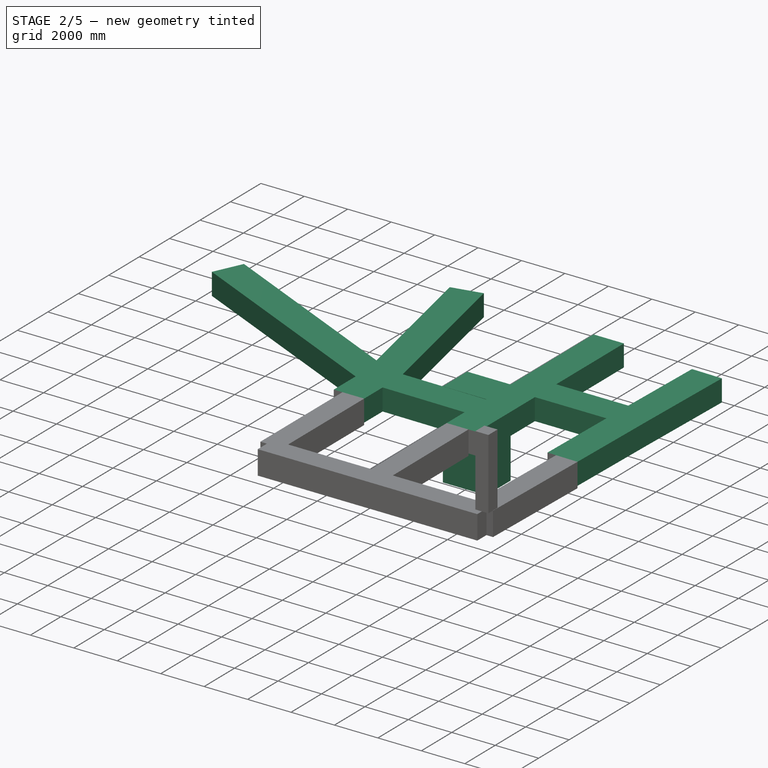
[diagram: stage 2 of 5 — iso view after this stage's code; geometry added in this stage tinted green]
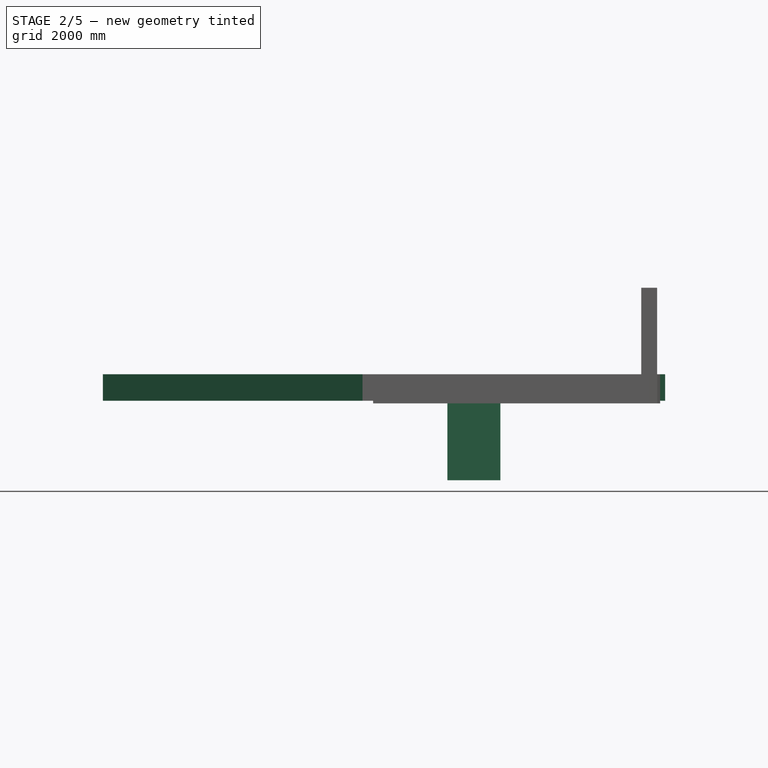
[diagram: stage 2 of 5 — front view after this stage's code; geometry added in this stage tinted green]
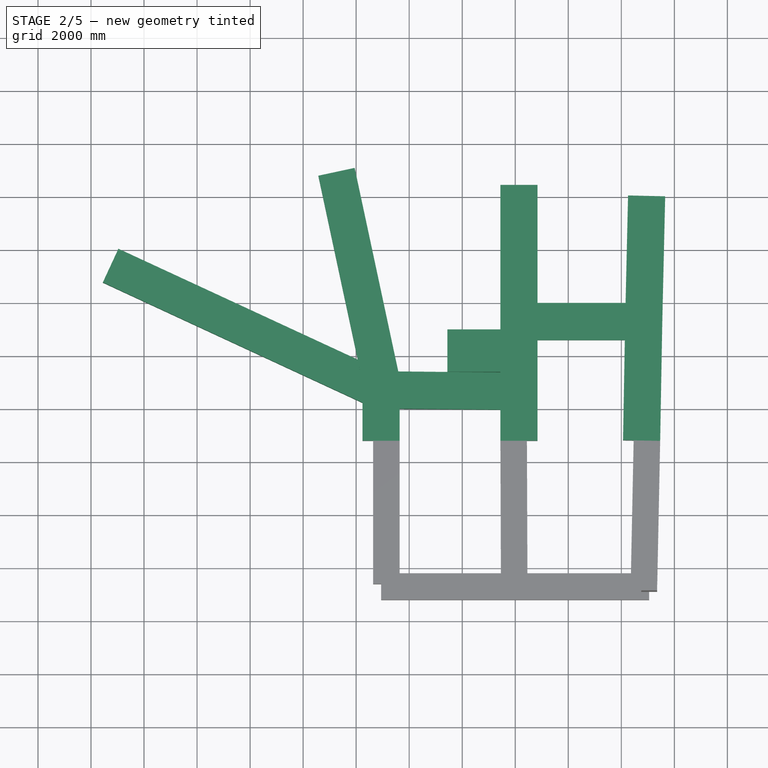
[diagram: stage 2 of 5 — top view after this stage's code; geometry added in this stage tinted green]
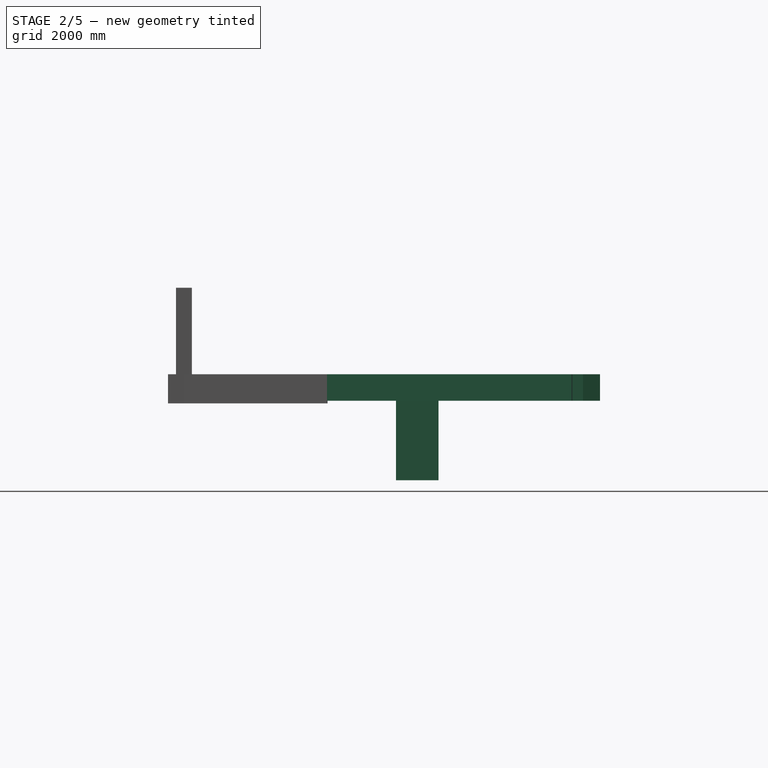
[diagram: stage 2 of 5 — right view after this stage's code; geometry added in this stage tinted green]
FEATURE [Part::Part2DObjectPython] Line060  # Draft 2D object (typed FeaturePython)
  Area = 0
  ChamferSize = 0
  Closed = false
  End = (17740,13000,0)
  FilletRadius = 0
  Length = 15865.4
  MakeFace = false
  Points = (3) [(2900,17701.4,0),(12940,13050,0),(17740,13000,0)]
  Start = (2900,17701.4,0)
  Subdivisions = 0
FEATURE [Part::FeaturePython] BaseFoundation005  # Arch/BIM 77 (typed FeaturePython)
  Base = -> Line060
  HorizontalArea = 0
  IfcData = attributes={"GlobalId": {"name": "GlobalId", "type": "IfcGloballyUniqueId", "is_enum": false, "enum_values": []}, "Description": {"... (+511 chars omitted),+1 more (map truncated)
  IfcType = 77
  MoveBase = false
  MoveWithHost = false
  PerimeterLength = 0
  PredefinedType = 0
  VerticalArea = 0
  align = 1
  design_type = 0
  fc = 25000
  final_wire_first_point = (0,0,0)
  final_wire_last_point = (0,0,0)
  height = 1000
  ks = 1.8
  layer = 1
  left_width = 320
  right_width = 1080
  width = 1400
FEATURE [Part::Part2DObjectPython] Wire005  # Draft 2D object (typed FeaturePython)
  Area = 0
  ChamferSize = 0
  Closed = false
  End = (12940,10750,0)
  FilletRadius = 0
  Length = 10322.1
  MakeFace = false
  Points = (3) [(11258.5,20893.9,0),(12940,13050,0),(12940,10750,0)]
  Start = (11258.5,20893.9,0)
  Subdivisions = 0
FEATURE [Part::FeaturePython] BaseFoundation007  # Arch/BIM 77 (typed FeaturePython)
  Base = -> Wire005
  HorizontalArea = 0
  IfcData = attributes={"GlobalId": {"name": "GlobalId", "type": "IfcGloballyUniqueId", "is_enum": false, "enum_values": []}, "Description": {"... (+511 chars omitted),+1 more (map truncated)
  IfcType = 77
  MoveBase = false
  MoveWithHost = false
  PerimeterLength = 0
  PredefinedType = 0
  VerticalArea = 0
  align = 0
  design_type = 0
  fc = 25000
  final_wire_first_point = (0,0,0)
  final_wire_last_point = (0,0,0)
  height = 1000
  ks = 1.8
  layer = 1
  left_width = 700
  right_width = 700
  width = 1400
FEATURE [Part::Part2DObjectPython] Wire006  # Draft 2D object (typed FeaturePython)
  Area = 0
  ChamferSize = 0
  Closed = false
  End = (23240,15250,0)
  FilletRadius = 0
  Length = 5500
  MakeFace = false
  Points = (2) [(17740,15250,0),(23240,15250,0)]
  Start = (17740,15250,0)
  Subdivisions = 0
FEATURE [Part::FeaturePython] BaseFoundation008  # Arch/BIM 77 (typed FeaturePython)
  Base = -> Wire006
  HorizontalArea = 0
  IfcData = attributes={"GlobalId": {"name": "GlobalId", "type": "IfcGloballyUniqueId", "is_enum": false, "enum_values": []}, "Description": {"... (+511 chars omitted),+1 more (map truncated)
  IfcType = 77
  MoveBase = false
  MoveWithHost = false
  PerimeterLength = 0
  PredefinedType = 0
  VerticalArea = 0
  align = 0
  design_type = 0
  fc = 25000
  final_wire_first_point = (0,0,0)
  final_wire_last_point = (0,0,0)
  height = 1000
  ks = 1.8
  layer = 0
  left_width = 700
  right_width = 700
  width = 1400
FEATURE [Part::Part2DObjectPython] Wire007  # Draft 2D object (typed FeaturePython)
  Area = 0
  ChamferSize = 0
  Closed = false
  End = (17740,10750,0)
  FilletRadius = 0
  Length = 9651.55
  MakeFace = false
  Points = (3) [(17740,20401.5,0),(17740,15250,0),(17740,10750,0)]
  Start = (17740,20401.5,0)
  Subdivisions = 0
FEATURE [Part::FeaturePython] BaseFoundation009  # Arch/BIM 77 (typed FeaturePython)
  Base = -> Wire007
  HorizontalArea = 0
  IfcData = attributes={"GlobalId": {"name": "GlobalId", "type": "IfcGloballyUniqueId", "is_enum": false, "enum_values": []}, "Description": {"... (+511 chars omitted),+1 more (map truncated)
  IfcType = 77
  MoveBase = false
  MoveWithHost = false
  PerimeterLength = 0
  PredefinedType = 0
  VerticalArea = 0
  align = 2
  design_type = 0
  fc = 25000
  final_wire_first_point = (0,0,0)
  final_wire_last_point = (0,0,0)
  height = 1000
  ks = 1.8
  layer = 1
  left_width = 1100
  right_width = 300
  width = 1400
FEATURE [Part::Part2DObjectPython] Wire008  # Draft 2D object (typed FeaturePython)
  Area = 0
  ChamferSize = 0
  Closed = false
  End = (23160,10750,0)
  FilletRadius = 0
  Length = 9227.45
  MakeFace = false
  Points = (3) [(23349.2,19975.5,0),(23240,15250,0),(23160,10750,0)]
  Start = (23349.2,19975.5,0)
  Subdivisions = 0
FEATURE [Part::FeaturePython] BaseFoundation010  # Arch/BIM 77 (typed FeaturePython)
  Base = -> Wire008
  HorizontalArea = 0
  IfcData = attributes={"GlobalId": {"name": "GlobalId", "type": "IfcGloballyUniqueId", "is_enum": false, "enum_values": []}, "Description": {"... (+511 chars omitted),+1 more (map truncated)
  IfcType = 77
  MoveBase = false
  MoveWithHost = false
  PerimeterLength = 0
  PredefinedType = 0
  VerticalArea = 0
  align = 1
  design_type = 0
  fc = 25000
  final_wire_first_point = (0,0,0)
  final_wire_last_point = (0,0,0)
  height = 1000
  ks = 1.8
  layer = 1
  left_width = 305
  right_width = 1095
  width = 1400
FEATURE [Sketcher::SketchObject] sketch
  ExternalGeometry = -> [Structure012]
  FullyConstrained = true
  sketch-geometry (4):
    g0: LineSegment StartX=15440 StartY=13350 StartZ=0 EndX=15440 EndY=14950 EndZ=0
    g1: LineSegment StartX=15440 StartY=14950 StartZ=0 EndX=17440 EndY=14950 EndZ=0
    g2: LineSegment StartX=17440 StartY=14950 StartZ=0 EndX=17440 EndY=13350 EndZ=0
    g3: LineSegment StartX=17440 StartY=13350 StartZ=0 EndX=15440 EndY=13350 EndZ=0
  constraints (11):
    c: Coincident(g0,g1)
    c: Coincident(g1,g2)
    c: Coincident(g2,g3)
    c: Coincident(g3,g0)
    c: Horizontal(g1)
    c: Horizontal(g3)
    c: Vertical(g0)
    c: Vertical(g2)
    c: DistanceX(g1,g1) = 2000
    c: DistanceY(g0,g0) = 1600
    c: Coincident(g1,g-3)
FEATURE [Part::FeaturePython] Opening  # Arch/BIM 93 (typed FeaturePython)
  Base = -> sketch
  HorizontalArea = 0
  IfcData = attributes={"GlobalId": {"name": "GlobalId", "type": "IfcGloballyUniqueId", "is_enum": false, "enum_values": []}, "Description": {"... (+446 chars omitted),+1 more (map truncated)
  IfcType = 93
  MoveBase = false
  MoveWithHost = false
  PerimeterLength = 0
  PredefinedType = 0
  VerticalArea = 0
  height = 4000
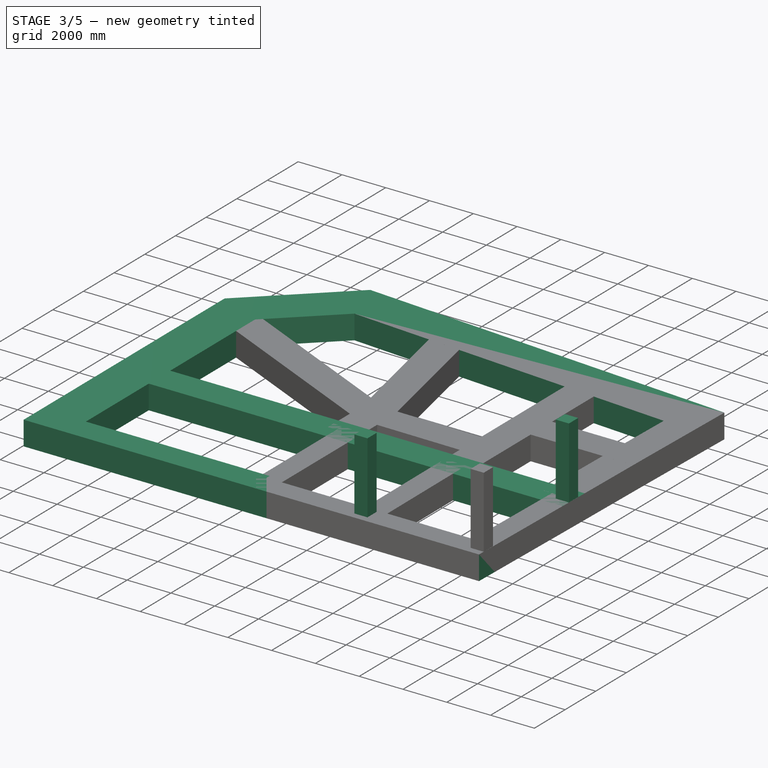
[diagram: stage 3 of 5 — iso view after this stage's code; geometry added in this stage tinted green]
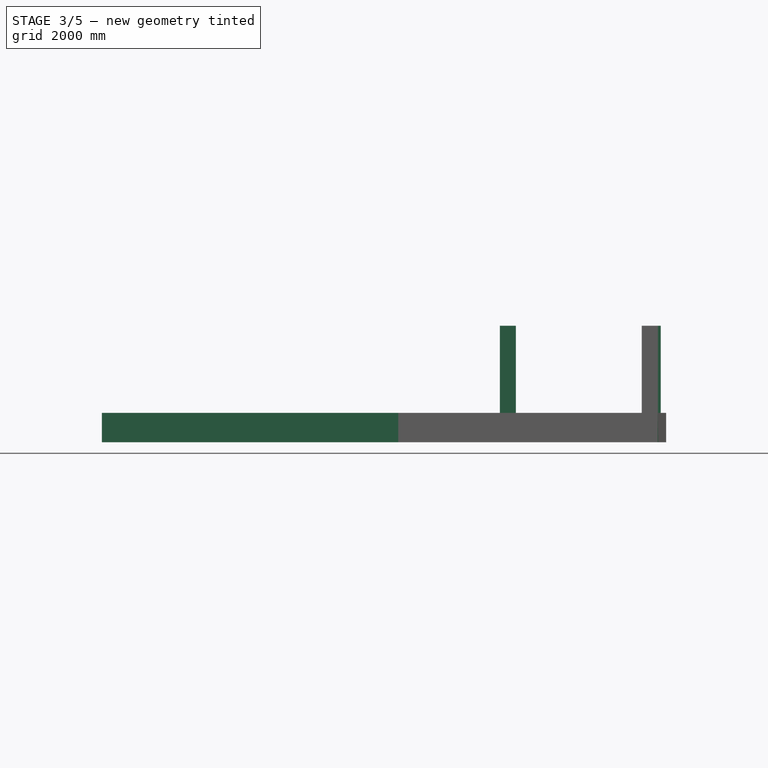
[diagram: stage 3 of 5 — front view after this stage's code; geometry added in this stage tinted green]
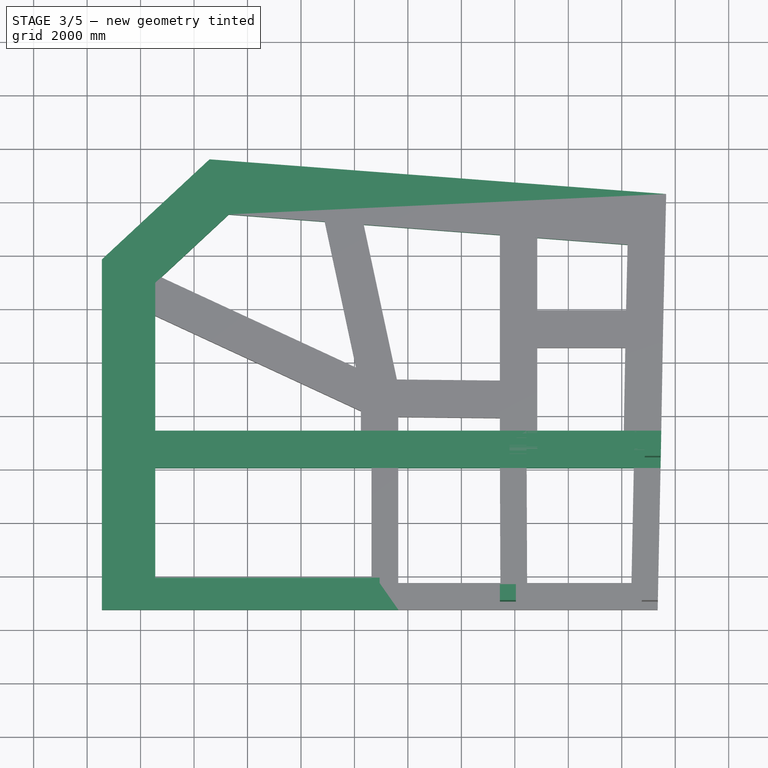
[diagram: stage 3 of 5 — top view after this stage's code; geometry added in this stage tinted green]
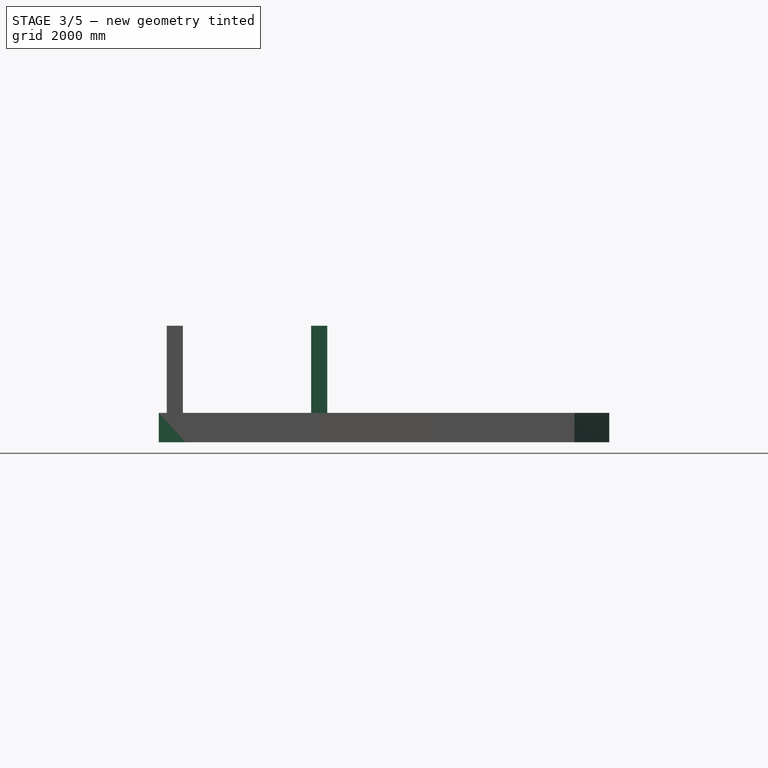
[diagram: stage 3 of 5 — right view after this stage's code; geometry added in this stage tinted green]
FEATURE [Part::Part2DObjectPython] Line015  # Draft 2D object (typed FeaturePython)
  Area = 0
  ChamferSize = 0
  Closed = false
  End = (11240,20980,0)
  FilletRadius = 0
  Length = 4482.91
  MakeFace = true
  Points = (2) [(6770,21320,0),(11240,20980,0)]
  Start = (6770,21320,0)
  Subdivisions = 0
  type = Beam
FEATURE [Part::Part2DObjectPython] Line016  # Draft 2D object (typed FeaturePython)
  Area = 0
  ChamferSize = 0
  Closed = false
  End = (17740,20450,0)
  FilletRadius = 0
  Length = 6521.57
  MakeFace = true
  Points = (2) [(11240,20980,0),(17740,20450,0)]
  Start = (11240,20980,0)
  Subdivisions = 0
  type = Beam
FEATURE [Part::Part2DObjectPython] Line017  # Draft 2D object (typed FeaturePython)
  Area = 0
  ChamferSize = 0
  Closed = false
  End = (23350,20010,0)
  FilletRadius = 0
  Length = 5627.23
  MakeFace = true
  Points = (2) [(17740,20450,0),(23350,20010,0)]
  Start = (17740,20450,0)
  Subdivisions = 0
  type = Beam
FEATURE [Part::Part2DObjectPython] Line018  # Draft 2D object (typed FeaturePython)
  Area = 0
  ChamferSize = 0
  Closed = false
  End = (23350,20010,0)
  FilletRadius = 0
  Length = 4761.27
  MakeFace = true
  Points = (2) [(23240,15250,0),(23350,20010,0)]
  Start = (23240,15250,0)
  Subdivisions = 0
  type = Beam
FEATURE [Part::Part2DObjectPython] Line019  # Draft 2D object (typed FeaturePython)
  Area = 0
  ChamferSize = 0
  Closed = false
  End = (23240,15250,0)
  FilletRadius = 0
  Length = 4500.71
  MakeFace = true
  Points = (2) [(23160,10750,0),(23240,15250,0)]
  Start = (23160,10750,0)
  Subdivisions = 0
  type = Beam
FEATURE [Part::Part2DObjectPython] Line020  # Draft 2D object (typed FeaturePython)
  Area = 0
  ChamferSize = 0
  Closed = false
  End = (23050,5350,0)
  FilletRadius = 0
  Length = 5310
  MakeFace = true
  Points = (2) [(17740,5350,0),(23050,5350,0)]
  Start = (17740,5350,0)
  Subdivisions = 0
  type = Beam
FEATURE [Part::Part2DObjectPython] Line021  # Draft 2D object (typed FeaturePython)
  Area = 0
  ChamferSize = 0
  Closed = false
  End = (17740,5350,0)
  FilletRadius = 0
  Length = 4800
  MakeFace = true
  Points = (2) [(12940,5350,0),(17740,5350,0)]
  Start = (12940,5350,0)
  Subdivisions = 0
  type = Beam
FEATURE [Part::Part2DObjectPython] Line022  # Draft 2D object (typed FeaturePython)
  Area = 0
  ChamferSize = 0
  Closed = false
  End = (12940,5350,0)
  FilletRadius = 0
  Length = 10040
  MakeFace = true
  Points = (2) [(2900,5350,0),(12940,5350,0)]
  Start = (2900,5350,0)
  Subdivisions = 0
  type = Beam
FEATURE [Part::Part2DObjectPython] Line023  # Draft 2D object (typed FeaturePython)
  Area = 0
  ChamferSize = 0
  Closed = false
  End = (2900,10750,0)
  FilletRadius = 0
  Length = 5400
  MakeFace = true
  Points = (2) [(2900,5350,0),(2900,10750,0)]
  Start = (2900,5350,0)
  Subdivisions = 0
  type = Beam
FEATURE [Part::Part2DObjectPython] Line024  # Draft 2D object (typed FeaturePython)
  Area = 0
  ChamferSize = 0
  Closed = false
  End = (2900,17580,0)
  FilletRadius = 0
  Length = 6830
  MakeFace = true
  Points = (2) [(2900,10750,0),(2900,17580,0)]
  Start = (2900,10750,0)
  Subdivisions = 0
  type = Beam
FEATURE [Part::Part2DObjectPython] Line025  # Draft 2D object (typed FeaturePython)
  Area = 0
  ChamferSize = 0
  Closed = false
  End = (6770,21320,0)
  FilletRadius = 0
  Length = 5381.87
  MakeFace = true
  Points = (2) [(2900,17580,0),(6770,21320,0)]
  Start = (2900,17580,0)
  Subdivisions = 0
  type = Beam
FEATURE [Part::Part2DObjectPython] Line026  # Draft 2D object (typed FeaturePython)
  Area = 0
  ChamferSize = 0
  Closed = false
  End = (17740,10750,0)
  FilletRadius = 0
  Length = 5400
  MakeFace = true
  Points = (2) [(17740,5350,0),(17740,10750,0)]
  Start = (17740,5350,0)
  Subdivisions = 0
  type = Beam
FEATURE [Part::Part2DObjectPython] Line027  # Draft 2D object (typed FeaturePython)
  Area = 0
  ChamferSize = 0
  Closed = false
  End = (17740,15250,0)
  FilletRadius = 0
  Length = 4500
  MakeFace = true
  Points = (2) [(17740,10750,0),(17740,15250,0)]
  Start = (17740,10750,0)
  Subdivisions = 0
  type = Beam
FEATURE [Part::Part2DObjectPython] Line028  # Draft 2D object (typed FeaturePython)
  Area = 0
  ChamferSize = 0
  Closed = false
  End = (12940,10750,0)
  FilletRadius = 0
  Length = 5400
  MakeFace = true
  Points = (2) [(12940,5350,0),(12940,10750,0)]
  Start = (12940,5350,0)
  Subdivisions = 0
  type = Beam
FEATURE [Part::Part2DObjectPython] Line029  # Draft 2D object (typed FeaturePython)
  Area = 0
  ChamferSize = 0
  Closed = false
  End = (12940,13050,0)
  FilletRadius = 0
  Length = 2300
  MakeFace = true
  Points = (2) [(12940,10750,0),(12940,13050,0)]
  Start = (12940,10750,0)
  Subdivisions = 0
  type = Beam
FEATURE [Part::Part2DObjectPython] Line030  # Draft 2D object (typed FeaturePython)
  Area = 0
  ChamferSize = 0
  Closed = false
  End = (12940,13050,0)
  FilletRadius = 0
  Length = 8110.17
  MakeFace = true
  Points = (2) [(11240,20980,0),(12940,13050,0)]
  Start = (11240,20980,0)
  Subdivisions = 0
  type = Beam
FEATURE [Part::Part2DObjectPython] Line031  # Draft 2D object (typed FeaturePython)
  Area = 0
  ChamferSize = 0
  Closed = false
  End = (23160,10750,0)
  FilletRadius = 0
  Length = 5420
  MakeFace = true
  Points = (2) [(17740,10750,0),(23160,10750,0)]
  Start = (17740,10750,0)
  Subdivisions = 0
  type = Beam
FEATURE [Part::Part2DObjectPython] Line032  # Draft 2D object (typed FeaturePython)
  Area = 0
  ChamferSize = 0
  Closed = false
  End = (17740,10750,0)
  FilletRadius = 0
  Length = 4800
  MakeFace = true
  Points = (2) [(12940,10750,0),(17740,10750,0)]
  Start = (12940,10750,0)
  Subdivisions = 0
  type = Beam
FEATURE [Part::Part2DObjectPython] Line033  # Draft 2D object (typed FeaturePython)
  Area = 0
  ChamferSize = 0
  Closed = false
  End = (12940,10750,0)
  FilletRadius = 0
  Length = 10040
  MakeFace = true
  Points = (2) [(2900,10750,0),(12940,10750,0)]
  Start = (2900,10750,0)
  Subdivisions = 0
  type = Beam
FEATURE [Part::Part2DObjectPython] Line034  # Draft 2D object (typed FeaturePython)
  Area = 0
  ChamferSize = 0
  Closed = false
  End = (12940,13050,0)
  FilletRadius = 0
  Length = 11014.6
  MakeFace = true
  Points = (2) [(2900,17580,0),(12940,13050,0)]
  Start = (2900,17580,0)
  Subdivisions = 0
  type = Beam
FEATURE [Part::Part2DObjectPython] Line035  # Draft 2D object (typed FeaturePython)
  Area = 0
  ChamferSize = 0
  Closed = false
  End = (23240,15250,0)
  FilletRadius = 0
  Length = 5500
  MakeFace = true
  Points = (2) [(17740,15250,0),(23240,15250,0)]
  Start = (17740,15250,0)
  Subdivisions = 0
  type = Beam
FEATURE [Part::Part2DObjectPython] Line037  # Draft 2D object (typed FeaturePython)
  Area = 0
  ChamferSize = 0
  Closed = false
  End = (17740,15250,0)
  FilletRadius = 0
  Length = 5280.15
  MakeFace = true
  Points = (2) [(12940,13050,0),(17740,15250,0)]
  Start = (12940,13050,0)
  Subdivisions = 0
  type = Beam
FEATURE [Part::Part2DObjectPython] Line040  # Draft 2D object (typed FeaturePython)
  Area = 0
  ChamferSize = 0
  Closed = false
  End = (12940,5350,0)
  FilletRadius = 0
  Length = 5025
  MakeFace = true
  Points = (2) [(12940,325,0),(12940,5350,0)]
  Start = (12940,325,0)
  Subdivisions = 0
  type = Beam
FEATURE [Part::Part2DObjectPython] Line042  # Draft 2D object (typed FeaturePython)
  Area = 0
  ChamferSize = 0
  Closed = false
  End = (17740,5350,0)
  FilletRadius = 0
  Length = 5025
  MakeFace = true
  Points = (2) [(17740,325,0),(17740,5350,0)]
  Start = (17740,325,0)
  Subdivisions = 0
  type = Beam
FEATURE [Part::Part2DObjectPython] Line048  # Draft 2D object (typed FeaturePython)
  Area = 0
  ChamferSize = 0
  Closed = false
  End = (7895,325,0)
  FilletRadius = 0
  Length = 4995
  MakeFace = true
  Points = (2) [(2900,325,0),(7895,325,0)]
  Start = (2900,325,0)
  Subdivisions = 0
  type = Beam
FEATURE [Part::Part2DObjectPython] Line049  # Draft 2D object (typed FeaturePython)
  Area = 0
  ChamferSize = 0
  Closed = false
  End = (12940,325,0)
  FilletRadius = 0
  Length = 5045
  MakeFace = true
  Points = (2) [(7895,325,0),(12940,325,0)]
  Start = (7895,325,0)
  Subdivisions = 0
  type = Beam
FEATURE [Part::Part2DObjectPython] Line050  # Draft 2D object (typed FeaturePython)
  Area = 0
  ChamferSize = 0
  Closed = false
  End = (17740,325,0)
  FilletRadius = 0
  Length = 4800
  MakeFace = true
  Points = (2) [(12940,325,0),(17740,325,0)]
  Start = (12940,325,0)
  Subdivisions = 0
  type = Beam
FEATURE [Part::Part2DObjectPython] Line051  # Draft 2D object (typed FeaturePython)
  Area = 0
  ChamferSize = 0
  Closed = false
  End = (22947.6,325,0)
  FilletRadius = 0
  Length = 5207.64
  MakeFace = true
  Points = (2) [(17740,325,0),(22947.6,325,0)]
  Start = (17740,325,0)
  Subdivisions = 0
  type = Beam
FEATURE [Part::Part2DObjectPython] Line052  # Draft 2D object (typed FeaturePython)
  Area = 0
  ChamferSize = 0
  Closed = false
  End = (2900,5350,0)
  FilletRadius = 0
  Length = 5025
  MakeFace = true
  Points = (2) [(2900,325,0),(2900,5350,0)]
  Start = (2900,325,0)
  Subdivisions = 0
  type = Beam
FEATURE [Part::Part2DObjectPython] Line054  # Draft 2D object (typed FeaturePython)
  Area = 0
  ChamferSize = 0
  Closed = false
  End = (17740,20450,0)
  FilletRadius = 0
  Length = 5200
  MakeFace = true
  Points = (2) [(17740,15250,0),(17740,20450,0)]
  Start = (17740,15250,0)
  Subdivisions = 0
  type = Beam
FEATURE [Part::Part2DObjectPython] Line055  # Draft 2D object (typed FeaturePython)
  Area = 0
  ChamferSize = 0
  Closed = false
  End = (23050,5350,0)
  FilletRadius = 0
  Length = 5026.04
  MakeFace = true
  Points = (2) [(22947.6,325,0),(23050,5350,0)]
  Start = (22947.6,325,0)
  Subdivisions = 0
  type = Beam
FEATURE [Part::Part2DObjectPython] Line056  # Draft 2D object (typed FeaturePython)
  Area = 0
  ChamferSize = 0
  Closed = false
  End = (23160,10750,0)
  FilletRadius = 0
  Length = 5401.12
  MakeFace = true
  Points = (2) [(23050,5350,0),(23160,10750,0)]
  Start = (23050,5350,0)
  Subdivisions = 0
  type = Beam
FEATURE [App::DocumentObjectGroup] Beams
  Group = -> [Line015,Line016,Line017,Line018,Line019,Line020,Line021,Line022,Line023,Line024,Line025,Line026,Line027,Line028,Line029,Line030,Line031,Line032,Line033,Line034,Line035,Line037,Line040,Line042,Line048,Line049,Line050,Line051,Line052,Line054,Line055,Line056]
FEATURE [App::FeaturePython] Safe  # WARN: FeaturePython — macro-defined, semantics opaque (R4)
  input = <path>
  input_str = <blob: 177508 chars omitted>
  output = <path>
FEATURE [Part::Part2DObjectPython] Wire002  # Draft 2D object (typed FeaturePython)
  Area = 0
  ChamferSize = 0
  Closed = false
  End = (12940,5350,0)
  FilletRadius = 0
  Length = 10040
  MakeFace = false
  Points = (3) [(2900,5350,0),(12940,5350,0),(12940,5350,0)]
  Start = (2900,5350,0)
  Subdivisions = 0
FEATURE [Part::FeaturePython] BaseFoundation002  # Arch/BIM 77 (typed FeaturePython)
  Base = -> Wire002
  HorizontalArea = 0
  IfcData = attributes={"GlobalId": {"name": "GlobalId", "type": "IfcGloballyUniqueId", "is_enum": false, "enum_values": []}, "Description": {"... (+511 chars omitted),+1 more (map truncated)
  IfcType = 77
  MoveBase = false
  MoveWithHost = false
  PerimeterLength = 0
  PredefinedType = 0
  VerticalArea = 0
  align = 0
  design_type = 0
  fc = 25000
  final_wire_first_point = (0,0,0)
  final_wire_last_point = (0,0,0)
  height = 1000
  ks = 2.3
  layer = 0
  left_width = 600
  right_width = 600
  width = 1200
FEATURE [Part::Part2DObjectPython] Wire003  # Draft 2D object (typed FeaturePython)
  Area = 0
  ChamferSize = 0
  Closed = false
  End = (23160,10750,0)
  FilletRadius = 0
  Length = 20260
  MakeFace = false
  Points = (4) [(2900,10750,0),(12940,10750,0),(17740,10750,0),(23160,10750,0)]
  Start = (2900,10750,0)
  Subdivisions = 0
FEATURE [Part::FeaturePython] BaseFoundation003  # Arch/BIM 77 (typed FeaturePython)
  Base = -> Wire003
  HorizontalArea = 0
  IfcData = attributes={"GlobalId": {"name": "GlobalId", "type": "IfcGloballyUniqueId", "is_enum": false, "enum_values": []}, "Description": {"... (+511 chars omitted),+1 more (map truncated)
  IfcType = 77
  MoveBase = false
  MoveWithHost = false
  PerimeterLength = 0
  PredefinedType = 0
  VerticalArea = 0
  align = 0
  design_type = 0
  fc = 25000
  final_wire_first_point = (0,0,0)
  final_wire_last_point = (0,0,0)
  height = 1000
  ks = 1.8
  layer = 0
  left_width = 700
  right_width = 700
  width = 1400
FEATURE [Part::Part2DObjectPython] Line059  # Draft 2D object (typed FeaturePython)
  Area = 0
  ChamferSize = 0
  Closed = false
  End = (23349.2,19975.5,0)
  FilletRadius = 0
  Length = 34239.1
  MakeFace = false
  Points = (4) [(2900,5350,0),(2900,17701.4,0),(6706.41,21239.7,0),(23349.2,19975.5,0)]
  Start = (2900,5350,0)
  Subdivisions = 0
FEATURE [Part::FeaturePython] BaseFoundation004  # Arch/BIM 77 (typed FeaturePython)
  Base = -> Line059
  HorizontalArea = 0
  IfcData = attributes={"GlobalId": {"name": "GlobalId", "type": "IfcGloballyUniqueId", "is_enum": false, "enum_values": []}, "Description": {"... (+511 chars omitted),+1 more (map truncated)
  IfcType = 77
  MoveBase = false
  MoveWithHost = false
  PerimeterLength = 0
  PredefinedType = 0
  VerticalArea = 0
  align = 1
  design_type = 0
  fc = 25000
  final_wire_first_point = (0,0,0)
  final_wire_last_point = (0,0,0)
  height = 1000
  ks = 1.3
  layer = 0
  left_width = 350
  right_width = 1650
  width = 2000
FEATURE [Part::FeaturePython] Structure003  label="C4_Story1"  # Arch/BIM 24 (typed FeaturePython)
  AttacherType = Attacher::AttachEngine3D
  AttachmentOffset = pos=(0,0,0) rot=(0,0,1;1.5708rad)
  Base = -> C6012AC001
  BaseMirror = false
  BaseOffsetX = 0
  BaseOffsetY = 0
  BasePerpendicularToTool = false
  BaseRotation = 0
  ComputedLength = 3260
  FaceMaker = 0
  Height = 3260
  HorizontalArea = 360000
  IfcData = attributes={"GlobalId": {"name": "GlobalId", "type": "IfcGloballyUniqueId", "is_enum": false, "enum_values": []}, "Description": {"... (+438 chars omitted),+1 more (map truncated)
  IfcType = 24
  Length = 0
  MapMode = 7
  MoveBase = false
  MoveWithHost = false
  Nodes = (2) [(23160,10750,0),(23160,10750,3260)]
  NodesOffset = 0
  Normal = (0,0,0)
  PerimeterLength = 2400
  Placement = pos=(23160,10750,0) rot=(0,0,1;1.5708rad)
  PredefinedType = 0
  Support = -> [Line003]
  ToolOffsetFirst = 0
  ToolOffsetLast = 0
  VerticalArea = 7.824e+06
  Width = 200
  combos_load = Combo1 Max=1487.331, 2516.53, -34151.5,Combo10 Max=1972.9893, -206234.57, -465865.71,Combo11 Max=1976.7708, -126254.22, -487637.8,+37 more (map truncated)
FEATURE [Part::Part2DObjectPython] Line004  label="C5_Story1_CenterLine"  # Draft 2D object (typed FeaturePython)
  Area = 0
  ChamferSize = 0
  Closed = false
  End = (17740,5350,3260)
  FilletRadius = 0
  Length = 3260
  MakeFace = true
  Points = (2) [(17740,5350,0),(17740,5350,3260)]
  Start = (17740,5350,0)
  Subdivisions = 0
FEATURE [Part::FeaturePython] Structure004  label="C5_Story1"  # Arch/BIM 24 (typed FeaturePython)
  AttacherType = Attacher::AttachEngine3D
  AttachmentOffset = pos=(0,0,0) rot=(0,0,1;1.5708rad)
  Base = -> C6012AC001
  BaseMirror = false
  BaseOffsetX = 0
  BaseOffsetY = 0
  BasePerpendicularToTool = false
  BaseRotation = 0
  ComputedLength = 3260
  FaceMaker = 0
  Height = 3260
  HorizontalArea = 360000
  IfcData = attributes={"GlobalId": {"name": "GlobalId", "type": "IfcGloballyUniqueId", "is_enum": false, "enum_values": []}, "Description": {"... (+438 chars omitted),+1 more (map truncated)
  IfcType = 24
  Length = 0
  MapMode = 7
  MoveBase = false
  MoveWithHost = false
  Nodes = (2) [(17740,5350,0),(17740,5350,3260)]
  NodesOffset = 0
  Normal = (0,0,0)
  PerimeterLength = 2400
  Placement = pos=(17740,5350,0) rot=(0,0,1;1.5708rad)
  PredefinedType = 0
  Support = -> [Line004]
  ToolOffsetFirst = 0
  ToolOffsetLast = 0
  VerticalArea = 7.824e+06
  Width = 200
  combos_load = Combo1 Max=1588.0272, 891.76, -2935.23,Combo10 Max=1703.9144, -162946.93, -474394.02,Combo11 Max=1688.1593, -131123.71, -547014.16,+37 more (map truncated)
FEATURE [Part::FeaturePython] Foundation  # Arch/BIM 77 (typed FeaturePython)
  HorizontalArea = 0
  IfcType = 77
  MoveBase = false
  MoveWithHost = false
  PerimeterLength = 0
  VerticalArea = 0
  base_foundations = -> [BaseFoundation002,BaseFoundation003,BaseFoundation004,BaseFoundation005,BaseFoundation007,BaseFoundation008,BaseFoundation009,BaseFoundation010,BaseFoundation014,BaseFoundation013,BaseFoundation012,BaseFoundation011]
  continuous_layer = 0
  cover = 75
  d = 1025
  fc = 30000
  foundation_type = 0
  height = 1100
  height_punch = 1100
  ks = 2
  level = 0
  openings = -> [Opening]
  redraw = false
  split = true
FEATURE [Part::FeaturePython] Punch  # WARN: FeaturePython — macro-defined, semantics opaque (R4)
  Area = 3.52981e+06
  Av = 400
  Fys = 340000
  I22 = 1.74659e+12
  I23 = 3.7139e+11
  I33 = 5.70597e+11
  Location = 7
  Ratio = 1.34
  Use_Reinforcement = true
  Vc = 4.83339e+09
  Vs = 3.82641e+09
  Vu = 6.49485e+09
  alpha_s = 30
  angle = 0
  b0 = 3443.72
  bx = 650
  by = 650
  center_of_column = (2900,17580,0)
  center_of_load = (2900,17580,0)
  center_of_punch = (3483.71,17432.6,-512.5)
  column = -> Structure009
  combos_ratio = Combo1=1.18,Combo10=1.02,Combo11=1.03,Combo12=1.34,Combo13=1.34,Combo14=1.34,Combo15=1.33,Combo16=1.15,Combo17=1.14,Combo18=1.24,Combo19=1.23,+30 more (map truncated)
  d = 1025
  fc = 30000
  foundation = -> Foundation
  gamma_vx = 0.4
  gamma_vy = 0.4
  id = C10_Story1
  one_way_shear_capacity = 2.4167e+09
  s = 36.431
  text = -> Text
  user_location = false
  vc = 1369.31
  x = 1696.96
FEATURE [Part::FeaturePython] Punch001  # WARN: FeaturePython — macro-defined, semantics opaque (R4)
  Area = 3946250
  Av = 400
  Fys = 340000
  I22 = 2.01792e+12
  I23 = 4.35051e+11
  I33 = 7.32735e+11
  Location = 7
  Ratio = 0.72
  Use_Reinforcement = false
  Vc = 5.40363e+09
  Vs = 0
  Vu = 3867325000
  alpha_s = 30
  angle = 0
  b0 = 3850
  bx = 600
  by = 600
  center_of_column = (17740,15250,0)
  center_of_load = (17740,15250,0)
  center_of_punch = (18231,15250,-512.5)
  column = -> Structure012
  combos_ratio = Combo1=0.66,Combo10=0.60,Combo11=0.60,Combo12=0.66,Combo13=0.66,Combo14=0.64,Combo15=0.64,Combo16=0.66,Combo17=0.66,Combo18=0.67,Combo19=0.67,+30 more (map truncated)
  d = 1025
  fc = 30000
  foundation = -> Foundation
  gamma_vx = 0.4
  gamma_vy = 0.4
  id = C13_Story1
  one_way_shear_capacity = 2.70181e+09
  s = 0
  text = -> Text001
  user_location = false
  vc = 1369.31
  x = 0
FEATURE [Part::FeaturePython] Punch002  # WARN: FeaturePython — macro-defined, semantics opaque (R4)
  Area = 3.87715e+06
  Av = 400
  Fys = 340000
  I22 = 6.90545e+11
  I23 = 4.2879e+11
  I33 = 1.96958e+12
  Location = 6
  Ratio = 1.22
  Use_Reinforcement = true
  Vc = 5.30901e+09
  Vs = 3.32412e+09
  Vu = 6.47485e+09
  alpha_s = 30
  angle = 0
  b0 = 3782.59
  bx = 600
  by = 600
  center_of_column = (11240,20980,0)
  center_of_load = (11240,20980,0)
  center_of_punch = (11213.5,20476.2,-512.5)
  column = -> Structure007
  combos_ratio = Combo1=1.00,Combo10=0.99,Combo11=0.99,Combo12=1.02,Combo13=1.03,Combo14=0.91,Combo15=0.91,Combo16=1.21,Combo17=1.22,Combo18=1.19,Combo19=1.20,+30 more (map truncated)
  d = 1025
  fc = 30000
  foundation = -> Foundation
  gamma_vx = 0.4
  gamma_vy = 0.4
  id = C8_Story1
  one_way_shear_capacity = 2.65451e+09
  s = 41.936
  text = -> Text002
  user_location = false
  vc = 1369.31
  x = 1690.15
FEATURE [Part::FeaturePython] Punch003  # WARN: FeaturePython — macro-defined, semantics opaque (R4)
  Area = 3.58609e+06
  Av = 400
  Fys = 340000
  I22 = 5.46465e+11
  I23 = 3.75932e+11
  I33 = 1.82236e+12
  Location = 6
  Ratio = 1.25
  Use_Reinforcement = true
  Vc = 4.91046e+09
  Vs = 3.26583e+09
  Vu = 6.13222e+09
  alpha_s = 30
  angle = 0
  b0 = 3498.63
  bx = 650
  by = 650
  center_of_column = (6850,21220,0)
  center_of_load = (6850,21220,0)
  center_of_punch = (6956.2,20634.2,-512.5)
  column = -> Structure008
  combos_ratio = Combo1=0.83,Combo10=0.66,Combo11=0.64,Combo12=1.18,Combo13=1.18,Combo14=0.98,Combo15=0.98,Combo16=1.10,Combo17=1.10,Combo18=1.24,Combo19=1.25,+30 more (map truncated)
  d = 1025
  fc = 30000
  foundation = -> Foundation
  gamma_vx = 0.4
  gamma_vy = 0.4
  id = C9_Story1
  one_way_shear_capacity = 2.45523e+09
  s = 42.6844
  text = -> Text003
  user_location = false
  vc = 1369.31
  x = 1573.6
FEATURE [Part::FeaturePython] Punch004  # WARN: FeaturePython — macro-defined, semantics opaque (R4)
  Area = 2690625
  Av = 400
  Fys = 340000
  I22 = 7.27073e+11
  I23 = 0
  I33 = 4.84589e+11
  Location = 0
  Ratio = 1.43
  Use_Reinforcement = true
  Vc = 3.68429e+09
  Vs = 3.34721e+09
  Vu = 5273625000
  alpha_s = 20
  angle = 0
  b0 = 2625
  bx = 650
  by = 650
  center_of_column = (2900,5350,0)
  center_of_load = (2900,5350,0)
  center_of_punch = (3468.9,5793.9,-512.5)
  column = -> Structure010
  combos_ratio = Combo1=0.91,Combo10=1.02,Combo11=1.09,Combo12=0.73,Combo13=0.66,Combo14=1.04,Combo15=0.96,Combo16=0.42,Combo17=0.34,Combo18=0.41,Combo19=0.32,+30 more (map truncated)
  d = 1025
  fc = 30000
  foundation = -> Foundation
  gamma_vx = 0.4
  gamma_vy = 0.4
  id = C16_Story1
  one_way_shear_capacity = 1.84215e+09
  s = 41.6466
  text = -> Text004
  user_location = false
  vc = 1369.31
  x = 3075.53
FEATURE [Part::FeaturePython] Punch005  # WARN: FeaturePython — macro-defined, semantics opaque (R4)
  Area = 5.15063e+06
  Av = 400
  Fys = 340000
  I22 = 2.2193e+12
  I23 = 2.70754e+11
  I33 = 2.41202e+12
  Location = 8
  Ratio = 0.45
  Use_Reinforcement = false
  Vc = 7.05279e+09
  Vs = 0
  Vu = 3.19339e+09
  alpha_s = 40
  angle = 0
  b0 = 5025.01
  bx = 600
  by = 600
  center_of_column = (17740,10750,0)
  center_of_load = (17740,10750,0)
  center_of_punch = (17855.3,10785.1,-512.5)
  column = -> Structure011
  combos_ratio = Combo1=0.37,Combo10=0.42,Combo11=0.42,Combo12=0.34,Combo13=0.34,Combo14=0.34,Combo15=0.35,Combo16=0.35,Combo17=0.34,Combo18=0.34,Combo19=0.34,+30 more (map truncated)
  d = 1025
  fc = 30000
  foundation = -> Foundation
  gamma_vx = 0.4
  gamma_vy = 0.4
  id = C12_Story1
  one_way_shear_capacity = 3.5264e+09
  s = 0
  text = -> Text005
  user_location = false
  vc = 1369.31
  x = 0
FEATURE [Part::FeaturePython] Punch006  # WARN: FeaturePython — macro-defined, semantics opaque (R4)
  Area = 5330000
  Av = 400
  Fys = 340000
  I22 = 2.23693e+12
  I23 = 3.03168e+11
  I33 = 2.13196e+12
  Location = 8
  Ratio = 0.55
  Use_Reinforcement = false
  Vc = 7.2984e+09
  Vs = 0
  Vu = 3997500000
  alpha_s = 40
  angle = 90
  b0 = 5200
  bx = 500
  by = 500
  center_of_column = (12940,10750,0)
  center_of_load = (12940,10750,0)
  center_of_punch = (12998.7,10711.5,-512.5)
  column = -> Structure013
  combos_ratio = Combo1=0.37,Combo10=0.39,Combo11=0.39,Combo12=0.38,Combo13=0.39,Combo14=0.45,Combo15=0.46,Combo16=0.21,Combo17=0.22,Combo18=0.26,Combo19=0.26,+30 more (map truncated)
  d = 1025
  fc = 30000
  foundation = -> Foundation
  gamma_vx = 0.4
  gamma_vy = 0.4
  id = C14_Story1
  one_way_shear_capacity = 3.6492e+09
  s = 0
  text = -> Text006
  user_location = false
  vc = 1369.31
  x = 0
FEATURE [Part::FeaturePython] Punch007  # WARN: FeaturePython — macro-defined, semantics opaque (R4)
  Area = 5.57551e+06
  Av = 400
  Fys = 340000
  I22 = 2.27237e+12
  I23 = 3.33578e+11
  I33 = 2.36004e+12
  Location = 8
  Ratio = 0.59
  Use_Reinforcement = false
  Vc = 7.63458e+09
  Vs = 0
  Vu = 4.51616e+09
  alpha_s = 40
  angle = 90
  b0 = 5439.52
  bx = 500
  by = 500
  center_of_column = (12940,13050,0)
  center_of_load = (12940,13050,0)
  center_of_punch = (12866.1,13138.5,-512.5)
  column = -> Structure014
  combos_ratio = Combo1=0.47,Combo10=0.42,Combo11=0.42,Combo12=0.51,Combo13=0.51,Combo14=0.45,Combo15=0.45,Combo16=0.58,Combo17=0.58,Combo18=0.59,Combo19=0.59,+30 more (map truncated)
  d = 1025
  fc = 30000
  foundation = -> Foundation
  gamma_vx = 0.4
  gamma_vy = 0.4
  id = C15_Story1
  one_way_shear_capacity = 3.81729e+09
  s = 0
  text = -> Text007
  user_location = false
  vc = 1369.31
  x = 0
FEATURE [Part::FeaturePython] Punch008  # WARN: FeaturePython — macro-defined, semantics opaque (R4)
  Area = 4151250
  Av = 400
  Fys = 340000
  I22 = 2.25921e+12
  I23 = 5.00652e+11
  I33 = 8.54145e+11
  Location = 7
  Ratio = 0.89
  Use_Reinforcement = true
  Vc = 5.68433e+09
  Vs = 1.81871e+09
  Vu = 5064525000
  alpha_s = 30
  angle = 0
  b0 = 4050
  bx = 650
  by = 650
  center_of_column = (2900,10750,0)
  center_of_load = (2900,10750,0)
  center_of_punch = (3389.31,10750,-512.5)
  column = -> Structure015
  combos_ratio = Combo1=0.80,Combo10=0.81,Combo11=0.81,Combo12=0.79,Combo13=0.80,Combo14=0.75,Combo15=0.76,Combo16=0.86,Combo17=0.87,Combo18=0.85,Combo19=0.85,+30 more (map truncated)
  d = 1025
  fc = 30000
  foundation = -> Foundation
  gamma_vx = 0.4
  gamma_vy = 0.4
  id = C11_Story1
  one_way_shear_capacity = 2.84217e+09
  s = 69.17
  text = -> Text008
  user_location = false
  vc = 1369.31
  x = 1430.37
FEATURE [Part::FeaturePython] Punch009  # WARN: FeaturePython — macro-defined, semantics opaque (R4)
  Area = 3.95149e+06
  Av = 400
  Fys = 340000
  I22 = 7.42667e+11
  I23 = 4.49224e+11
  I33 = 2.01871e+12
  Location = 6
  Ratio = 1.14
  Use_Reinforcement = true
  Vc = 5.41081e+09
  Vs = 2.8083e+09
  Vu = 6.16433e+09
  alpha_s = 30
  angle = 0
  b0 = 3855.12
  bx = 600
  by = 600
  center_of_column = (17740,20450,0)
  center_of_load = (17740,20450,0)
  center_of_punch = (17714,19961,-512.5)
  column = -> Structure
  combos_ratio = Combo1=0.85,Combo10=0.64,Combo11=0.66,Combo12=1.07,Combo13=1.04,Combo14=0.94,Combo15=0.91,Combo16=1.06,Combo17=1.02,Combo18=1.14,Combo19=1.10,+30 more (map truncated)
  d = 1025
  fc = 30000
  foundation = -> Foundation
  gamma_vx = 0.4
  gamma_vy = 0.4
  id = C1_Story1
  one_way_shear_capacity = 2.7054e+09
  s = 49.6385
  text = -> Text009
  user_location = false
  vc = 1369.31
  x = 1584.52
FEATURE [Part::FeaturePython] Punch010  # WARN: FeaturePython — macro-defined, semantics opaque (R4)
  Area = 2.34669e+06
  Av = 400
  Fys = 340000
  I22 = 4.5861e+11
  I23 = 0
  I33 = 3.88726e+11
  Location = 2
  Ratio = 1.32
  Use_Reinforcement = true
  Vc = 3.21333e+09
  Vs = 2.45e+09
  Vu = 4.2475e+09
  alpha_s = 20
  angle = 0
  b0 = 2289.45
  bx = 600
  by = 600
  center_of_column = (23350,20010,0)
  center_of_load = (23350,20010,0)
  center_of_punch = (22801.2,19507.1,-512.5)
  column = -> Structure001
  combos_ratio = Combo1=0.91,Combo10=1.04,Combo11=1.07,Combo12=0.73,Combo13=0.70,Combo14=0.53,Combo15=0.50,Combo16=1.32,Combo17=1.28,Combo18=1.16,Combo19=1.12,+30 more (map truncated)
  d = 1025
  fc = 30000
  foundation = -> Foundation
  gamma_vx = 0.4
  gamma_vy = 0.4
  id = C2_Story1
  one_way_shear_capacity = 1.60667e+09
  s = 56.8979
  text = -> Text010
  user_location = false
  vc = 1369.31
  x = 2377.38
FEATURE [Part::FeaturePython] Punch011  # WARN: FeaturePython — macro-defined, semantics opaque (R4)
  Area = 3.28e+06
  Av = 400
  Fys = 340000
  I22 = 9.54748e+11
  I23 = 6.04396e+11
  I33 = 1.70436e+12
  Location = 4
  Ratio = 0.92
  Use_Reinforcement = false
  Vc = 4.49132e+09
  Vs = 0
  Vu = 4.1328e+09
  alpha_s = 30
  angle = 0
  b0 = 3200
  bx = 600
  by = 600
  center_of_column = (12940,5350,0)
  center_of_load = (12940,5350,0)
  center_of_punch = (12951.7,5572.66,-512.5)
  column = -> Structure005
  combos_ratio = Combo1=0.69,Combo10=0.69,Combo11=0.69,Combo12=0.64,Combo13=0.65,Combo14=0.78,Combo15=0.79,Combo16=0.42,Combo17=0.42,Combo18=0.45,Combo19=0.47,+30 more (map truncated)
  d = 1025
  fc = 30000
  foundation = -> Foundation
  gamma_vx = 0.4
  gamma_vy = 0.4
  id = C6_Story1
  one_way_shear_capacity = 2.24566e+09
  s = 0
  text = -> Text011
  user_location = false
  vc = 1369.31
  x = 0
FEATURE [Part::FeaturePython] Punch012  # WARN: FeaturePython — macro-defined, semantics opaque (R4)
  Area = 3.96107e+06
  Av = 400
  Fys = 340000
  I22 = 2.02751e+12
  I23 = 4.42762e+11
  I33 = 7.43809e+11
  Location = 5
  Ratio = 0.45
  Use_Reinforcement = false
  Vc = 5.42392e+09
  Vs = 0
  Vu = 2.45587e+09
  alpha_s = 30
  angle = 0
  b0 = 3864.46
  bx = 600
  by = 600
  center_of_column = (23240,15250,0)
  center_of_load = (23240,15250,0)
  center_of_punch = (22752,15257,-512.5)
  column = -> Structure002
  combos_ratio = Combo1=0.39,Combo10=0.44,Combo11=0.44,Combo12=0.28,Combo13=0.28,Combo14=0.27,Combo15=0.26,Combo16=0.41,Combo17=0.40,Combo18=0.36,Combo19=0.35,+30 more (map truncated)
  d = 1025
  fc = 30000
  foundation = -> Foundation
  gamma_vx = 0.4
  gamma_vy = 0.4
  id = C3_Story1
  one_way_shear_capacity = 2.71196e+09
  s = 0
  text = -> Text012
  user_location = false
  vc = 1369.31
  x = 0
FEATURE [Part::FeaturePython] Punch013  # WARN: FeaturePython — macro-defined, semantics opaque (R4)
  Area = 3.73582e+06
  Av = 400
  Fys = 340000
  I22 = 1.86858e+12
  I23 = 4.31298e+11
  I33 = 7.08981e+11
  Location = 5
  Ratio = 0.45
  Use_Reinforcement = false
  Vc = 5.11548e+09
  Vs = 0
  Vu = 2.31621e+09
  alpha_s = 30
  angle = 0
  b0 = 3644.7
  bx = 600
  by = 600
  center_of_column = (23160,10750,0)
  center_of_load = (23160,10750,0)
  center_of_punch = (22688.2,10802.7,-512.5)
  column = -> Structure003
  combos_ratio = Combo1=0.39,Combo10=0.45,Combo11=0.45,Combo12=0.26,Combo13=0.26,Combo14=0.28,Combo15=0.28,Combo16=0.34,Combo17=0.34,Combo18=0.30,Combo19=0.30,+30 more (map truncated)
  d = 1025
  fc = 30000
  foundation = -> Foundation
  gamma_vx = 0.4
  gamma_vy = 0.4
  id = C4_Story1
  one_way_shear_capacity = 2.55774e+09
  s = 0
  text = -> Text013
  user_location = false
  vc = 1369.31
  x = 0
FEATURE [Part::FeaturePython] Punch014  # WARN: FeaturePython — macro-defined, semantics opaque (R4)
  Area = 3.07501e+06
  Av = 400
  Fys = 340000
  I22 = 9.193e+11
  I23 = 5.97033e+11
  I33 = 1.5608e+12
  Location = 4
  Ratio = 0.74
  Use_Reinforcement = false
  Vc = 4.21063e+09
  Vs = 0
  Vu = 3.13651e+09
  alpha_s = 30
  angle = 0
  b0 = 3000.01
  bx = 600
  by = 600
  center_of_column = (17740,5350,0)
  center_of_load = (17740,5350,0)
  center_of_punch = (17812.5,5554.17,-512.5)
  column = -> Structure004
  combos_ratio = Combo1=0.48,Combo10=0.67,Combo11=0.67,Combo12=0.35,Combo13=0.37,Combo14=0.40,Combo15=0.42,Combo16=0.29,Combo17=0.29,Combo18=0.30,Combo19=0.30,+30 more (map truncated)
  d = 1025
  fc = 30000
  foundation = -> Foundation
  gamma_vx = 0.4
  gamma_vy = 0.4
  id = C5_Story1
  one_way_shear_capacity = 2.10531e+09
  s = 0
  text = -> Text014
  user_location = false
  vc = 1369.31
  x = 0
FEATURE [Part::FeaturePython] Punch015  # WARN: FeaturePython — macro-defined, semantics opaque (R4)
  Area = 2.05021e+06
  Av = 400
  Fys = 340000
  I22 = 6.01938e+11
  I23 = 0
  I33 = 3.8126e+11
  Location = 1
  Ratio = 0.92
  Use_Reinforcement = false
  Vc = 2.80737e+09
  Vs = 0
  Vu = 2.58327e+09
  alpha_s = 20
  angle = 0
  b0 = 2000.21
  bx = 600
  by = 600
  center_of_column = (23050,5350,0)
  center_of_load = (23050,5350,0)
  center_of_punch = (22554.5,5706.3,-512.5)
  column = -> Structure006
  combos_ratio = Combo1=0.59,Combo10=0.85,Combo11=0.83,Combo12=0.18,Combo13=0.19,Combo14=0.37,Combo15=0.39,Combo16=0.25,Combo17=0.27,Combo18=0.13,Combo19=0.13,+30 more (map truncated)
  d = 1025
  fc = 30000
  foundation = -> Foundation
  gamma_vx = 0.4
  gamma_vy = 0.4
  id = C7_Story1
  one_way_shear_capacity = 1.40368e+09
  s = 0
  text = -> Text015
  user_location = false
  vc = 1369.31
  x = 0
FEATURE [App::DocumentObjectGroup] Punches
  Group = -> [Punch,Punch001,Punch002,Punch003,Punch004,Punch005,Punch006,Punch007,Punch008,Punch009,Punch010,Punch011,Punch012,Punch013,Punch014,Punch015]
FEATURE [Part::Part2DObjectPython] Line346  # Draft 2D object (typed FeaturePython)
  Area = 0
  ChamferSize = 0
  Closed = false
  End = (13640,5350,0)
  FilletRadius = 0
  Length = 11090
  MakeFace = false
  Points = (2) [(2550,5350,0),(13640,5350,0)]
  Start = (2550,5350,0)
  Subdivisions = 0
FEATURE [Part::FeaturePython] Strip  label="CSA1"  # Arch/BIM 0 (typed FeaturePython)
  Base = -> Line346
  HorizontalArea = 0
  IfcData = attributes={"GlobalId": {"name": "GlobalId", "type": "IfcGloballyUniqueId", "is_enum": false, "enum_values": []}, "Description": {"... (+538 chars omitted),+1 more (map truncated)
  IfcType = 0
  MoveBase = false
  MoveWithHost = false
  PerimeterLength = 0
  PredefinedType = 0
  VerticalArea = 0
  align = 0
  design_type = 0
  layer = 0
  left_width = 600
  right_width = 600
  width = 1200
FEATURE [Part::Part2DObjectPython] Line347  # Draft 2D object (typed FeaturePython)
  Area = 0
  ChamferSize = 0
  Closed = false
  End = (23465,10750,0)
  FilletRadius = 0
  Length = 20915
  MakeFace = false
  Points = (2) [(2550,10750,0),(23465,10750,0)]
  Start = (2550,10750,0)
  Subdivisions = 0
FEATURE [Part::FeaturePython] Strip001  label="CSA2"  # Arch/BIM 0 (typed FeaturePython)
  Base = -> Line347
  HorizontalArea = 0
  IfcData = attributes={"GlobalId": {"name": "GlobalId", "type": "IfcGloballyUniqueId", "is_enum": false, "enum_values": []}, "Description": {"... (+538 chars omitted),+1 more (map truncated)
  IfcType = 0
  MoveBase = false
  MoveWithHost = false
  PerimeterLength = 0
  PredefinedType = 0
  VerticalArea = 0
  align = 0
  design_type = 0
  layer = 0
  left_width = 700
  right_width = 700
  width = 1400
FEATURE [Part::Part2DObjectPython] Wire  # Draft 2D object (typed FeaturePython)
  Area = 0
  ChamferSize = 0
  Closed = false
  End = (23653.7,19952.3,0)
  FilletRadius = 0
  Length = 35144.5
  MakeFace = false
  Points = (4) [(2900,4750,0),(2900,17701.4,0),(6706.41,21239.7,0),(23653.7,19952.3,0)]
  Start = (2900,4750,0)
  Subdivisions = 0
FEATURE [Part::FeaturePython] Strip002  label="CSA3"  # Arch/BIM 0 (typed FeaturePython)
  Base = -> Wire
  HorizontalArea = 0
  IfcData = attributes={"GlobalId": {"name": "GlobalId", "type": "IfcGloballyUniqueId", "is_enum": false, "enum_values": []}, "Description": {"... (+538 chars omitted),+1 more (map truncated)
  IfcType = 0
  MoveBase = false
  MoveWithHost = false
  PerimeterLength = 0
  PredefinedType = 0
  VerticalArea = 0
  align = 1
  design_type = 0
  layer = 0
  left_width = 350
  right_width = 1650
  width = 2000
FEATURE [Part::Part2DObjectPython] Wire014  # Draft 2D object (typed FeaturePython)
  Area = 0
  ChamferSize = 0
  Closed = false
  End = (18840,12988.5,0)
  FilletRadius = 0
  Length = 17343.6
  MakeFace = false
  Points = (3) [(2556.92,17860.4,0),(12940,13050,0),(18840,12988.5,0)]
  Start = (2556.92,17860.4,0)
  Subdivisions = 0
FEATURE [Part::FeaturePython] Strip003  label="CSB1"  # Arch/BIM 0 (typed FeaturePython)
  Base = -> Wire014
  HorizontalArea = 0
  IfcData = attributes={"GlobalId": {"name": "GlobalId", "type": "IfcGloballyUniqueId", "is_enum": false, "enum_values": []}, "Description": {"... (+538 chars omitted),+1 more (map truncated)
  IfcType = 0
  MoveBase = false
  MoveWithHost = false
  PerimeterLength = 0
  PredefinedType = 0
  VerticalArea = 0
  align = 1
  design_type = 0
  layer = 1
  left_width = 320
  right_width = 1080
  width = 1400
FEATURE [Part::Part2DObjectPython] Wire015  # Draft 2D object (typed FeaturePython)
  Area = 0
  ChamferSize = 0
  Closed = false
  End = (12940,10050,0)
  FilletRadius = 0
  Length = 11387
  MakeFace = false
  Points = (3) [(11182,21250.7,0),(12940,13050,0),(12940,10050,0)]
  Start = (11182,21250.7,0)
  Subdivisions = 0
FEATURE [Part::FeaturePython] Strip004  label="CSB2"  # Arch/BIM 0 (typed FeaturePython)
  Base = -> Wire015
  HorizontalArea = 0
  IfcData = attributes={"GlobalId": {"name": "GlobalId", "type": "IfcGloballyUniqueId", "is_enum": false, "enum_values": []}, "Description": {"... (+538 chars omitted),+1 more (map truncated)
  IfcType = 0
  MoveBase = false
  MoveWithHost = false
  PerimeterLength = 0
  PredefinedType = 0
  VerticalArea = 0
  align = 0
  design_type = 0
  layer = 1
  left_width = 700
  right_width = 700
  width = 1400
FEATURE [Part::Part2DObjectPython] Line348  # Draft 2D object (typed FeaturePython)
  Area = 0
  ChamferSize = 0
  Closed = false
  End = (23545.1,15250,0)
  FilletRadius = 0
  Length = 6105.08
  MakeFace = false
  Points = (2) [(17440,15250,0),(23545.1,15250,0)]
  Start = (17440,15250,0)
  Subdivisions = 0
FEATURE [Part::FeaturePython] Strip005  label="CSA4"  # Arch/BIM 0 (typed FeaturePython)
  Base = -> Line348
  HorizontalArea = 0
  IfcData = attributes={"GlobalId": {"name": "GlobalId", "type": "IfcGloballyUniqueId", "is_enum": false, "enum_values": []}, "Description": {"... (+538 chars omitted),+1 more (map truncated)
  IfcType = 0
  MoveBase = false
  MoveWithHost = false
  PerimeterLength = 0
  PredefinedType = 0
  VerticalArea = 0
  align = 0
  design_type = 0
  layer = 0
  left_width = 700
  right_width = 700
  width = 1400
FEATURE [Part::Part2DObjectPython] Line349  # Draft 2D object (typed FeaturePython)
  Area = 0
  ChamferSize = 0
  Closed = false
  End = (17740,10050,0)
  FilletRadius = 0
  Length = 10702.6
  MakeFace = false
  Points = (2) [(17740,20752.6,0),(17740,10050,0)]
  Start = (17740,20752.6,0)
  Subdivisions = 0
FEATURE [Part::FeaturePython] Strip006  label="CSB3"  # Arch/BIM 0 (typed FeaturePython)
  Base = -> Line349
  HorizontalArea = 0
  IfcData = attributes={"GlobalId": {"name": "GlobalId", "type": "IfcGloballyUniqueId", "is_enum": false, "enum_values": []}, "Description": {"... (+538 chars omitted),+1 more (map truncated)
  IfcType = 0
  MoveBase = false
  MoveWithHost = false
  PerimeterLength = 0
  PredefinedType = 0
  VerticalArea = 0
  align = 2
  design_type = 0
  layer = 1
  left_width = 1100
  right_width = 300
  width = 1400
FEATURE [Part::Part2DObjectPython] Wire016  # Draft 2D object (typed FeaturePython)
  Area = 0
  ChamferSize = 0
  Closed = false
  End = (23147.6,10050,0)
  FilletRadius = 0
  Length = 10278
  MakeFace = false
  Points = (3) [(23357.3,20325.9,0),(23240,15250,0),(23147.6,10050,0)]
  Start = (23357.3,20325.9,0)
  Subdivisions = 0
FEATURE [Part::FeaturePython] Strip007  label="CSB4"  # Arch/BIM 0 (typed FeaturePython)
  Base = -> Wire016
  HorizontalArea = 0
  IfcData = attributes={"GlobalId": {"name": "GlobalId", "type": "IfcGloballyUniqueId", "is_enum": false, "enum_values": []}, "Description": {"... (+538 chars omitted),+1 more (map truncated)
  IfcType = 0
  MoveBase = false
  MoveWithHost = false
  PerimeterLength = 0
  PredefinedType = 0
  VerticalArea = 0
  align = 1
  design_type = 0
  layer = 1
  left_width = 305
  right_width = 1095
  width = 1400
FEATURE [Part::Part2DObjectPython] Line350  # Draft 2D object (typed FeaturePython)
  Area = 0
  ChamferSize = 0
  Closed = false
  End = (23355.1,5350,0)
  FilletRadius = 0
  Length = 10715.1
  MakeFace = false
  Points = (2) [(12640,5350,0),(23355.1,5350,0)]
  Start = (12640,5350,0)
  Subdivisions = 0
FEATURE [Part::FeaturePython] Strip008  label="CSA5"  # Arch/BIM 0 (typed FeaturePython)
  Base = -> Line350
  HorizontalArea = 0
  IfcData = attributes={"GlobalId": {"name": "GlobalId", "type": "IfcGloballyUniqueId", "is_enum": false, "enum_values": []}, "Description": {"... (+538 chars omitted),+1 more (map truncated)
  IfcType = 0
  MoveBase = false
  MoveWithHost = false
  PerimeterLength = 0
  PredefinedType = 0
  VerticalArea = 0
  align = 2
  design_type = 0
  layer = 0
  left_width = 400
  right_width = 600
  width = 1000
FEATURE [App::DocumentObjectGroup] A_strips
  Group = -> [Strip,Strip001,Strip002,Strip005,Strip008]
FEATURE [Part::Part2DObjectPython] Line351  # Draft 2D object (typed FeaturePython)
  Area = 0
  ChamferSize = 0
  Closed = false
  End = (12940,4750,0)
  FilletRadius = 0
  Length = 6700
  MakeFace = false
  Points = (2) [(12940,11450,0),(12940,4750,0)]
  Start = (12940,11450,0)
  Subdivisions = 0
FEATURE [Part::FeaturePython] Strip009  label="CSB5"  # Arch/BIM 0 (typed FeaturePython)
  Base = -> Line351
  HorizontalArea = 0
  IfcData = attributes={"GlobalId": {"name": "GlobalId", "type": "IfcGloballyUniqueId", "is_enum": false, "enum_values": []}, "Description": {"... (+538 chars omitted),+1 more (map truncated)
  IfcType = 0
  MoveBase = false
  MoveWithHost = false
  PerimeterLength = 0
  PredefinedType = 0
  VerticalArea = 0
  align = 1
  design_type = 0
  layer = 1
  left_width = 700
  right_width = 300
  width = 1000
FEATURE [Part::Part2DObjectPython] Line352  # Draft 2D object (typed FeaturePython)
  Area = 0
  ChamferSize = 0
  Closed = false
  End = (17762.9,4750,0)
  FilletRadius = 0
  Length = 6700.05
  MakeFace = false
  Points = (2) [(17737.3,11450,0),(17762.9,4750,0)]
  Start = (17737.3,11450,0)
  Subdivisions = 0
FEATURE [Part::FeaturePython] Strip010  label="CSB6"  # Arch/BIM 0 (typed FeaturePython)
  Base = -> Line352
  HorizontalArea = 0
  IfcData = attributes={"GlobalId": {"name": "GlobalId", "type": "IfcGloballyUniqueId", "is_enum": false, "enum_values": []}, "Description": {"... (+538 chars omitted),+1 more (map truncated)
  IfcType = 0
  MoveBase = false
  MoveWithHost = false
  PerimeterLength = 0
  PredefinedType = 0
  VerticalArea = 0
  align = 2
  design_type = 0
  layer = 1
  left_width = 700
  right_width = 300
  width = 1000
FEATURE [Part::Part2DObjectPython] Line353  # Draft 2D object (typed FeaturePython)
  Area = 0
  ChamferSize = 0
  Closed = false
  End = (23037.8,4750,0)
  FilletRadius = 0
  Length = 6701.39
  MakeFace = false
  Points = (2) [(23174.3,11450,0),(23037.8,4750,0)]
  Start = (23174.3,11450,0)
  Subdivisions = 0
FEATURE [Part::FeaturePython] Strip011  label="CSB7"  # Arch/BIM 0 (typed FeaturePython)
  Base = -> Line353
  HorizontalArea = 0
  IfcData = attributes={"GlobalId": {"name": "GlobalId", "type": "IfcGloballyUniqueId", "is_enum": false, "enum_values": []}, "Description": {"... (+538 chars omitted),+1 more (map truncated)
  IfcType = 0
  MoveBase = false
  MoveWithHost = false
  PerimeterLength = 0
  PredefinedType = 0
  VerticalArea = 0
  align = 1
  design_type = 0
  layer = 1
  left_width = 305
  right_width = 695
  width = 1000
FEATURE [App::DocumentObjectGroup] B_strips
  Group = -> [Strip003,Strip004,Strip006,Strip007,Strip009,Strip010,Strip011]
note: 4 file-system paths scrubbed to <path> (originals preserved in the JSON sidecar)
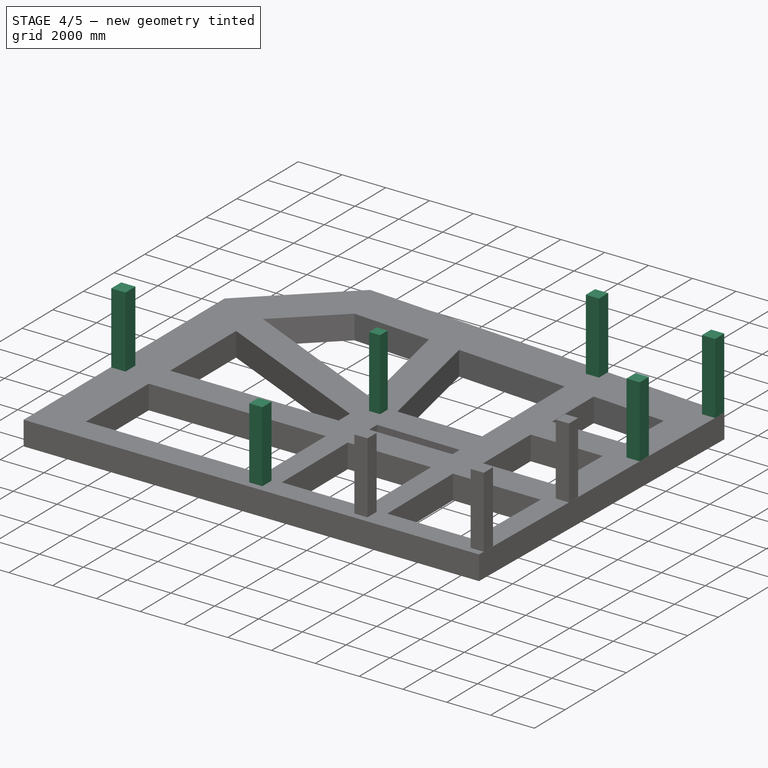
[diagram: stage 4 of 5 — iso view after this stage's code; geometry added in this stage tinted green]
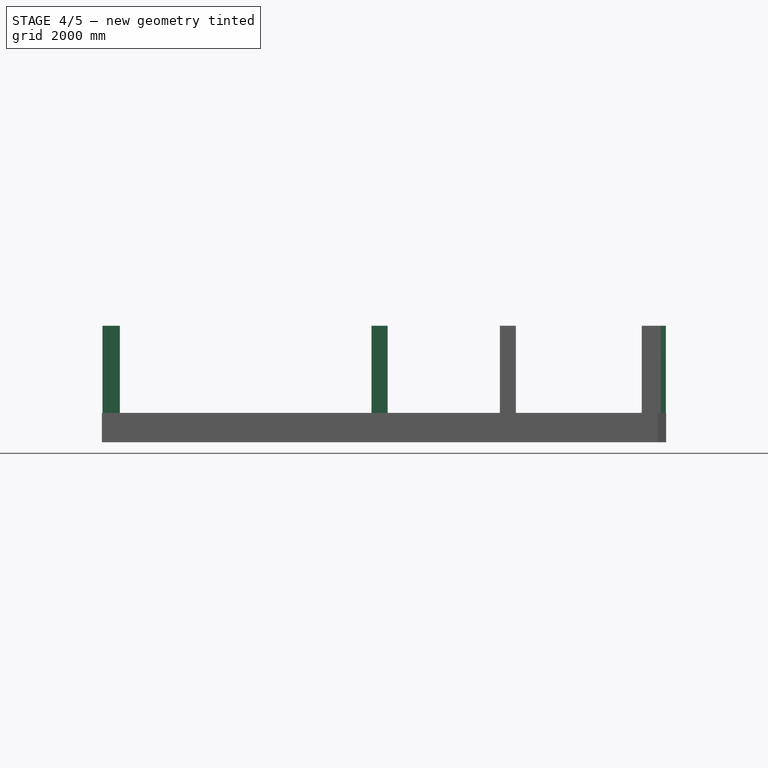
[diagram: stage 4 of 5 — front view after this stage's code; geometry added in this stage tinted green]
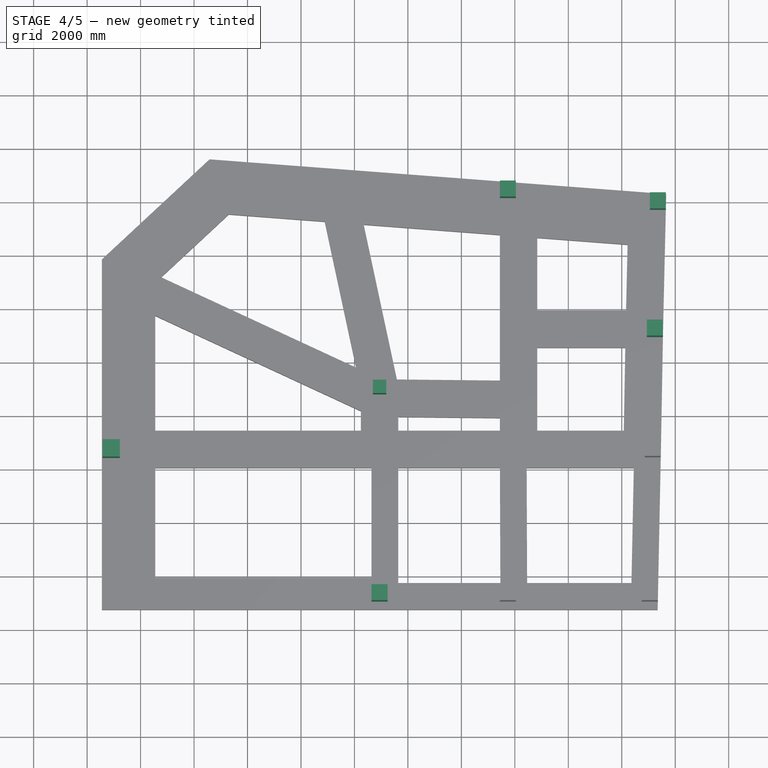
[diagram: stage 4 of 5 — top view after this stage's code; geometry added in this stage tinted green]
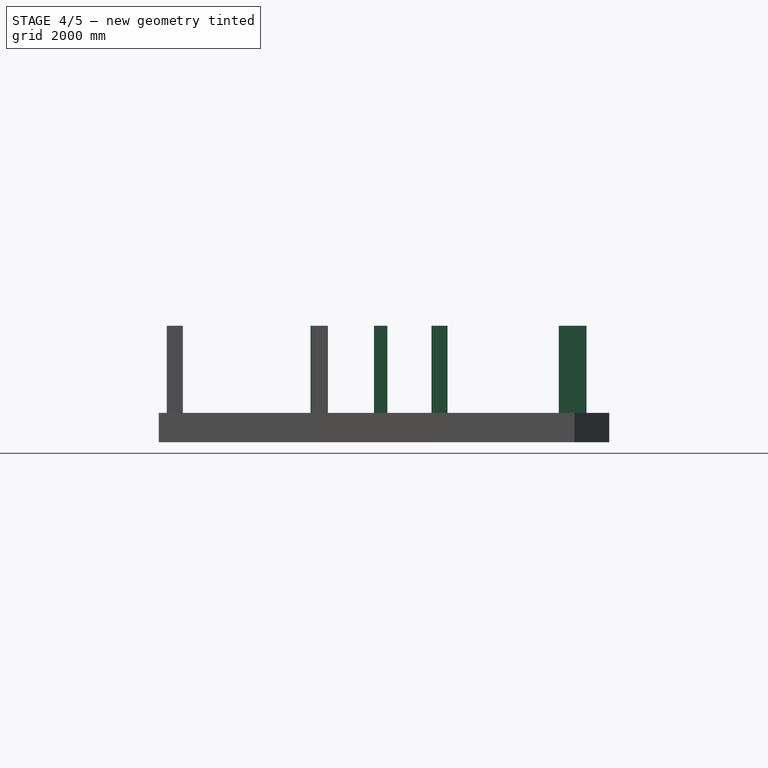
[diagram: stage 4 of 5 — right view after this stage's code; geometry added in this stage tinted green]
FEATURE [Part::Part2DObjectPython] Line014  label="C15_Story1_CenterLine"  # Draft 2D object (typed FeaturePython)
  Area = 0
  ChamferSize = 0
  Closed = false
  End = (12940,13050,3260)
  FilletRadius = 0
  Length = 3260
  MakeFace = true
  Points = (2) [(12940,13050,0),(12940,13050,3260)]
  Start = (12940,13050,0)
  Subdivisions = 0
FEATURE [Part::FeaturePython] Structure014  label="C15_Story1"  # Arch/BIM 24 (typed FeaturePython)
  AttacherType = Attacher::AttachEngine3D
  AttachmentOffset = pos=(0,0,0) rot=(0,0,1;3.14159rad)
  Base = -> C5016A
  BaseMirror = false
  BaseOffsetX = 0
  BaseOffsetY = 0
  BasePerpendicularToTool = false
  BaseRotation = 0
  ComputedLength = 3260
  FaceMaker = 0
  Height = 3260
  HorizontalArea = 250000
  IfcData = attributes={"GlobalId": {"name": "GlobalId", "type": "IfcGloballyUniqueId", "is_enum": false, "enum_values": []}, "Description": {"... (+438 chars omitted),+1 more (map truncated)
  IfcType = 24
  Length = 0
  MapMode = 7
  MoveBase = false
  MoveWithHost = false
  Nodes = (2) [(12940,13050,0),(12940,13050,3260)]
  NodesOffset = 0
  Normal = (0,0,0)
  PerimeterLength = 2000
  Placement = pos=(12940,13050,0) rot=(0,0,1;3.14159rad)
  PredefinedType = 0
  Support = -> [Line014]
  ToolOffsetFirst = 0
  ToolOffsetLast = 0
  VerticalArea = 6.52e+06
  Width = 200
  combos_load = Combo1 Max=3256.5464, -72060.73, -90743.51,Combo10 Max=2859.502, -205492.26, -373784.09,Combo11 Max=2862.6615, -207589.86, -375902.38,+37 more (map truncated)
FEATURE [Part::FeaturePython] Structure015  label="C11_Story1"  # Arch/BIM 24 (typed FeaturePython)
  AttacherType = Attacher::AttachEngine3D
  AttachmentOffset = pos=(0,0,0) rot=(0,0,1;1.5708rad)
  Base = -> C6516A
  BaseMirror = false
  BaseOffsetX = 0
  BaseOffsetY = 0
  BasePerpendicularToTool = false
  BaseRotation = 0
  ComputedLength = 3260
  FaceMaker = 0
  Height = 3260
  HorizontalArea = 422500
  IfcData = attributes={"GlobalId": {"name": "GlobalId", "type": "IfcGloballyUniqueId", "is_enum": false, "enum_values": []}, "Description": {"... (+438 chars omitted),+1 more (map truncated)
  IfcType = 24
  Length = 0
  MapMode = 7
  MoveBase = false
  MoveWithHost = false
  Nodes = (2) [(2900,10750,0),(2900,10750,3260)]
  NodesOffset = 0
  Normal = (0,0,0)
  PerimeterLength = 2600
  Placement = pos=(2900,10750,0) rot=(0,0,1;1.5708rad)
  PredefinedType = 0
  Support = -> [Line061]
  ToolOffsetFirst = 0
  ToolOffsetLast = 0
  VerticalArea = 8.476e+06
  Width = 200
  combos_load = Combo1 Max=3365.5208, -44206.15, 111375.02,Combo10 Max=3122.8682, -188656.93, -365351.45,Combo11 Max=3067.3394, -303328.24, -392230.23,+37 more (map truncated)
FEATURE [Part::Part2DObjectPython] Line  label="C1_Story1_CenterLine"  # Draft 2D object (typed FeaturePython)
  Area = 0
  ChamferSize = 0
  Closed = false
  End = (17740,20450,3260)
  FilletRadius = 0
  Length = 3260
  MakeFace = true
  Points = (2) [(17740,20450,0),(17740,20450,3260)]
  Start = (17740,20450,0)
  Subdivisions = 0
FEATURE [Part::Part2DObjectPython] C6012A001  # Draft 2D object (typed FeaturePython)
  Height = 600
  Width = 600
FEATURE [Part::Part2DObjectPython] Line001  label="C2_Story1_CenterLine"  # Draft 2D object (typed FeaturePython)
  Area = 0
  ChamferSize = 0
  Closed = false
  End = (23350,20010,3260)
  FilletRadius = 0
  Length = 3260
  MakeFace = true
  Points = (2) [(23350,20010,0),(23350,20010,3260)]
  Start = (23350,20010,0)
  Subdivisions = 0
FEATURE [Part::Part2DObjectPython] C6016A001  # Draft 2D object (typed FeaturePython)
  Height = 600
  Width = 600
FEATURE [Part::FeaturePython] Structure  label="C1_Story1"  # Arch/BIM 24 (typed FeaturePython)
  AttacherType = Attacher::AttachEngine3D
  AttachmentOffset = pos=(0,0,0) rot=(0,0,1;1.5708rad)
  Base = -> C6016A001
  BaseMirror = false
  BaseOffsetX = 0
  BaseOffsetY = 0
  BasePerpendicularToTool = false
  BaseRotation = 0
  ComputedLength = 3260
  FaceMaker = 0
  Height = 3260
  HorizontalArea = 360000
  IfcData = attributes={"GlobalId": {"name": "GlobalId", "type": "IfcGloballyUniqueId", "is_enum": false, "enum_values": []}, "Description": {"... (+438 chars omitted),+1 more (map truncated)
  IfcType = 24
  Length = 0
  MapMode = 7
  MoveBase = false
  MoveWithHost = false
  Nodes = (2) [(17740,20450,0),(17740,20450,3260)]
  NodesOffset = 0
  Normal = (0,0,0)
  PerimeterLength = 2400
  Placement = pos=(17740,20450,0) rot=(0,0,1;1.5708rad)
  PredefinedType = 0
  Support = -> [Line]
  ToolOffsetFirst = 0
  ToolOffsetLast = 0
  VerticalArea = 7.824e+06
  Width = 200
  combos_load = Combo1 Max=2938.9049, 29625.17, 18248.1,Combo10 Max=2593.3562, -135314.76, -507526.34,Combo11 Max=2644.5087, -102111.07, -447623.95,+37 more (map truncated)
FEATURE [Part::FeaturePython] Structure001  label="C2_Story1"  # Arch/BIM 24 (typed FeaturePython)
  AttacherType = Attacher::AttachEngine3D
  AttachmentOffset = pos=(0,0,0) rot=(0,0,1;1.5708rad)
  Base = -> C6012A001
  BaseMirror = false
  BaseOffsetX = 0
  BaseOffsetY = 0
  BasePerpendicularToTool = false
  BaseRotation = 0
  ComputedLength = 3260
  FaceMaker = 0
  Height = 3260
  HorizontalArea = 360000
  IfcData = attributes={"GlobalId": {"name": "GlobalId", "type": "IfcGloballyUniqueId", "is_enum": false, "enum_values": []}, "Description": {"... (+438 chars omitted),+1 more (map truncated)
  IfcType = 24
  Length = 0
  MapMode = 7
  MoveBase = false
  MoveWithHost = false
  Nodes = (2) [(23350,20010,0),(23350,20010,3260)]
  NodesOffset = 0
  Normal = (0,0,0)
  PerimeterLength = 2400
  Placement = pos=(23350,20010,0) rot=(0,0,1;1.5708rad)
  PredefinedType = 0
  Support = -> [Line001]
  ToolOffsetFirst = 0
  ToolOffsetLast = 0
  VerticalArea = 7.824e+06
  Width = 200
  combos_load = Combo1 Max=1793.6246, 16153.35, -24194.94,Combo10 Max=2291.985, -180519.99, -507803.37,Combo11 Max=2311.6094, -105428.98, -457158.85,+37 more (map truncated)
FEATURE [Part::Part2DObjectPython] Line003  label="C4_Story1_CenterLine"  # Draft 2D object (typed FeaturePython)
  Area = 0
  ChamferSize = 0
  Closed = false
  End = (23160,10750,3260)
  FilletRadius = 0
  Length = 3260
  MakeFace = true
  Points = (2) [(23160,10750,0),(23160,10750,3260)]
  Start = (23160,10750,0)
  Subdivisions = 0
FEATURE [Part::Part2DObjectPython] Line002  label="C3_Story1_CenterLine"  # Draft 2D object (typed FeaturePython)
  Area = 0
  ChamferSize = 0
  Closed = false
  End = (23240,15250,3260)
  FilletRadius = 0
  Length = 3260
  MakeFace = true
  Points = (2) [(23240,15250,0),(23240,15250,3260)]
  Start = (23240,15250,0)
  Subdivisions = 0
FEATURE [Part::FeaturePython] Structure002  label="C3_Story1"  # Arch/BIM 24 (typed FeaturePython)
  AttacherType = Attacher::AttachEngine3D
  AttachmentOffset = pos=(0,0,0) rot=(0,0,1;1.5708rad)
  Base = -> C6012A001
  BaseMirror = false
  BaseOffsetX = 0
  BaseOffsetY = 0
  BasePerpendicularToTool = false
  BaseRotation = 0
  ComputedLength = 3260
  FaceMaker = 0
  Height = 3260
  HorizontalArea = 360000
  IfcData = attributes={"GlobalId": {"name": "GlobalId", "type": "IfcGloballyUniqueId", "is_enum": false, "enum_values": []}, "Description": {"... (+438 chars omitted),+1 more (map truncated)
  IfcType = 24
  Length = 0
  MapMode = 7
  MoveBase = false
  MoveWithHost = false
  Nodes = (2) [(23240,15250,0),(23240,15250,3260)]
  NodesOffset = 0
  Normal = (0,0,0)
  PerimeterLength = 2400
  Placement = pos=(23240,15250,0) rot=(0,0,1;1.5708rad)
  PredefinedType = 0
  Support = -> [Line002]
  ToolOffsetFirst = 0
  ToolOffsetLast = 0
  VerticalArea = 7.824e+06
  Width = 200
  combos_load = Combo1 Max=1557.446, -1147.08, -30780.18,Combo10 Max=2022.1433, -213394.44, -497230.79,Combo11 Max=2020.9427, -130787.07, -484186.71,+37 more (map truncated)
FEATURE [Part::Part2DObjectPython] Line005  label="C6_Story1_CenterLine"  # Draft 2D object (typed FeaturePython)
  Area = 0
  ChamferSize = 0
  Closed = false
  End = (12940,5350,3260)
  FilletRadius = 0
  Length = 3260
  MakeFace = true
  Points = (2) [(12940,5350,0),(12940,5350,3260)]
  Start = (12940,5350,0)
  Subdivisions = 0
FEATURE [Part::FeaturePython] Structure005  label="C6_Story1"  # Arch/BIM 24 (typed FeaturePython)
  AttacherType = Attacher::AttachEngine3D
  AttachmentOffset = pos=(0,0,0) rot=(0,0,1;1.5708rad)
  Base = -> C6012AC001
  BaseMirror = false
  BaseOffsetX = 0
  BaseOffsetY = 0
  BasePerpendicularToTool = false
  BaseRotation = 0
  ComputedLength = 3260
  FaceMaker = 0
  Height = 3260
  HorizontalArea = 360000
  IfcData = attributes={"GlobalId": {"name": "GlobalId", "type": "IfcGloballyUniqueId", "is_enum": false, "enum_values": []}, "Description": {"... (+438 chars omitted),+1 more (map truncated)
  IfcType = 24
  Length = 0
  MapMode = 7
  MoveBase = false
  MoveWithHost = false
  Nodes = (2) [(12940,5350,0),(12940,5350,3260)]
  NodesOffset = 0
  Normal = (0,0,0)
  PerimeterLength = 2400
  Placement = pos=(12940,5350,0) rot=(0,0,1;1.5708rad)
  PredefinedType = 0
  Support = -> [Line005]
  ToolOffsetFirst = 0
  ToolOffsetLast = 0
  VerticalArea = 7.824e+06
  Width = 200
  combos_load = Combo1 Max=2387.3824, 12212.55, -101571.64,Combo10 Max=1926.6746, -128347.15, -567232.44,Combo11 Max=1853.2126, -131950.15, -636244.22,+37 more (map truncated)
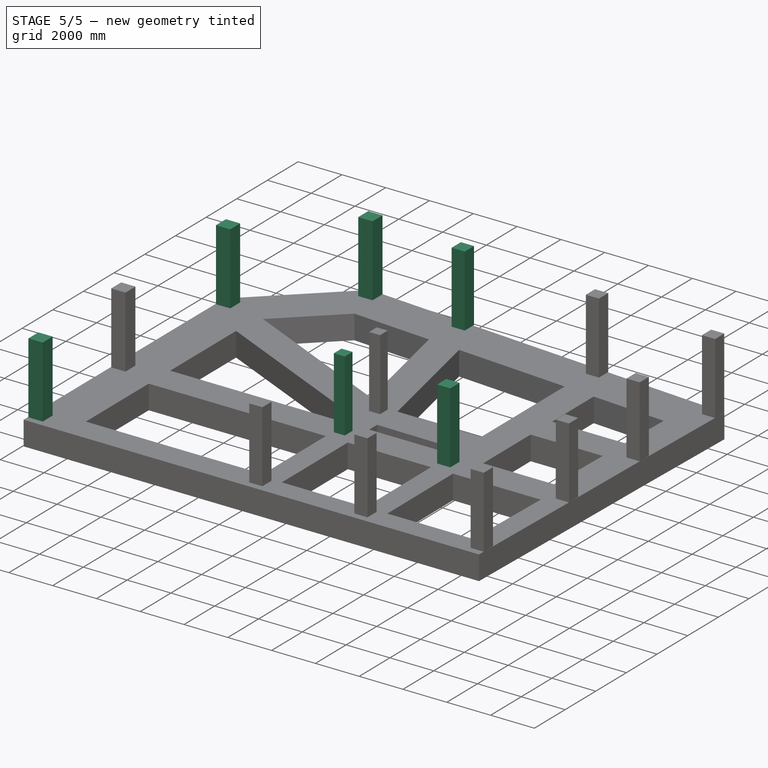
[diagram: stage 5 of 5 — iso view after this stage's code; geometry added in this stage tinted green]
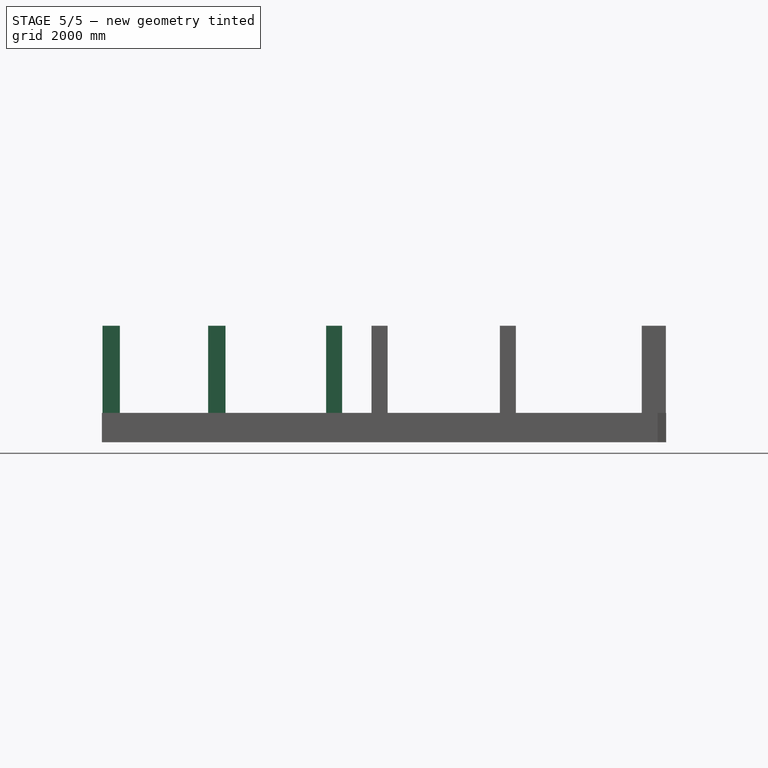
[diagram: stage 5 of 5 — front view after this stage's code; geometry added in this stage tinted green]
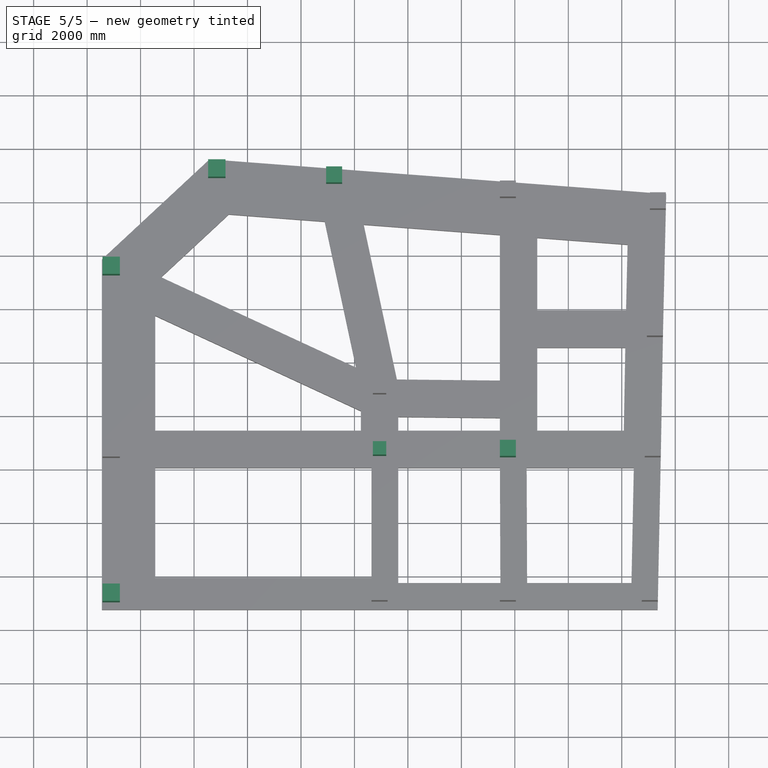
[diagram: stage 5 of 5 — top view after this stage's code; geometry added in this stage tinted green]
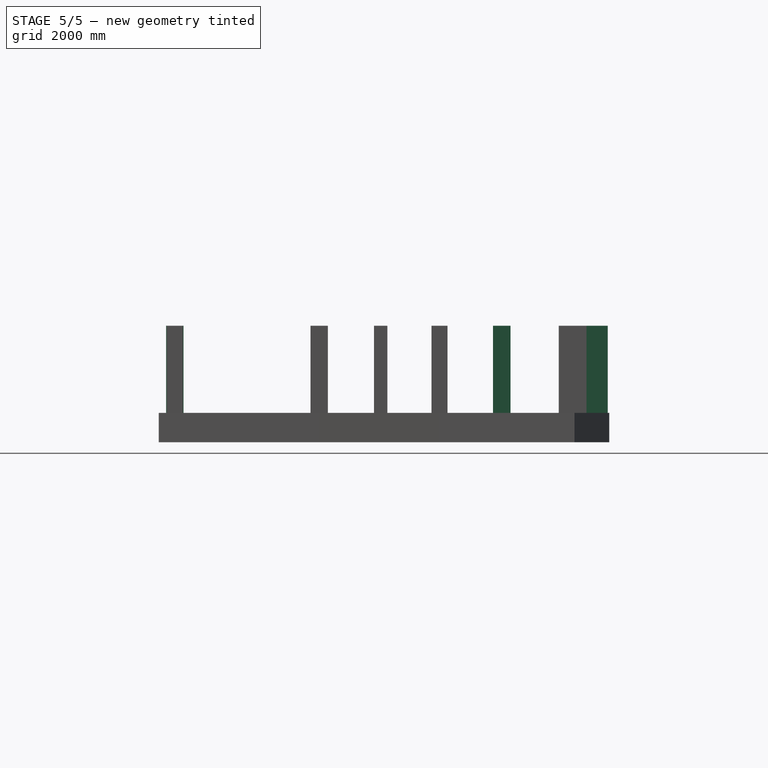
[diagram: stage 5 of 5 — right view after this stage's code; geometry added in this stage tinted green]
FEATURE [Part::Part2DObjectPython] C6516A  # Draft 2D object (typed FeaturePython)
  Height = 650
  Width = 650
FEATURE [Part::Part2DObjectPython] Line008  label="C9_Story1_CenterLine"  # Draft 2D object (typed FeaturePython)
  Area = 0
  ChamferSize = 0
  Closed = false
  End = (6850,21220,3260)
  FilletRadius = 0
  Length = 3260
  MakeFace = true
  Placement = pos=(80,-100,0) rot=(0,0,1;0rad)
  Points = (2) [(6770,21320,0),(6770,21320,3260)]
  Start = (6850,21220,0)
  Subdivisions = 0
FEATURE [Part::Part2DObjectPython] Line009  label="C10_Story1_CenterLine"  # Draft 2D object (typed FeaturePython)
  Area = 0
  ChamferSize = 0
  Closed = false
  End = (2900,17580,3260)
  FilletRadius = 0
  Length = 3260
  MakeFace = true
  Points = (2) [(2900,17580,0),(2900,17580,3260)]
  Start = (2900,17580,0)
  Subdivisions = 0
FEATURE [Part::FeaturePython] Structure009  label="C10_Story1"  # Arch/BIM 24 (typed FeaturePython)
  AttacherType = Attacher::AttachEngine3D
  AttachmentOffset = pos=(0,0,0) rot=(0,0,1;1.5708rad)
  Base = -> C6516A
  BaseMirror = false
  BaseOffsetX = 0
  BaseOffsetY = 0
  BasePerpendicularToTool = false
  BaseRotation = 0
  ComputedLength = 3260
  FaceMaker = 0
  Height = 3260
  HorizontalArea = 422500
  IfcData = attributes={"GlobalId": {"name": "GlobalId", "type": "IfcGloballyUniqueId", "is_enum": false, "enum_values": []}, "Description": {"... (+438 chars omitted),+1 more (map truncated)
  IfcType = 24
  Length = 0
  MapMode = 7
  MoveBase = false
  MoveWithHost = false
  Nodes = (2) [(2900,17580,0),(2900,17580,3260)]
  NodesOffset = 0
  Normal = (0,0,0)
  PerimeterLength = 2600
  Placement = pos=(2900,17580,0) rot=(0,0,1;1.5708rad)
  PredefinedType = 0
  Support = -> [Line009]
  ToolOffsetFirst = 0
  ToolOffsetLast = 0
  VerticalArea = 8.476e+06
  Width = 200
  combos_load = Combo1 Max=4209.8574, 72926.14, 131706.43,Combo10 Max=3418.7296, -26249.02, -417291.53,Combo11 Max=3464.0534, -137675.67, -372312.49,+37 more (map truncated)
FEATURE [Part::Part2DObjectPython] Line010  label="C16_Story1_CenterLine"  # Draft 2D object (typed FeaturePython)
  Area = 0
  ChamferSize = 0
  Closed = false
  End = (2900,5350,3260)
  FilletRadius = 0
  Length = 3260
  MakeFace = true
  Points = (2) [(2900,5350,0),(2900,5350,3260)]
  Start = (2900,5350,0)
  Subdivisions = 0
FEATURE [Part::FeaturePython] Structure008  label="C9_Story1"  # Arch/BIM 24 (typed FeaturePython)
  AttacherType = Attacher::AttachEngine3D
  AttachmentOffset = pos=(0,0,0) rot=(0,0,1;1.5708rad)
  Base = -> C6516A
  BaseMirror = false
  BaseOffsetX = 0
  BaseOffsetY = 0
  BasePerpendicularToTool = false
  BaseRotation = 0
  ComputedLength = 3260
  FaceMaker = 0
  Height = 3260
  HorizontalArea = 422500
  IfcData = attributes={"GlobalId": {"name": "GlobalId", "type": "IfcGloballyUniqueId", "is_enum": false, "enum_values": []}, "Description": {"... (+438 chars omitted),+1 more (map truncated)
  IfcType = 24
  Length = 0
  MapMode = 7
  MoveBase = false
  MoveWithHost = false
  Nodes = (2) [(6770,21320,0),(6770,21320,3260)]
  NodesOffset = 0
  Normal = (0,0,0)
  PerimeterLength = 2600
  Placement = pos=(6850,21220,0) rot=(0,0,1;1.5708rad)
  PredefinedType = 0
  Support = -> [Line008]
  ToolOffsetFirst = 0
  ToolOffsetLast = 0
  VerticalArea = 8.476e+06
  Width = 200
  combos_load = Combo1 Max=2855.2093, 11440.44, 33718.94,Combo10 Max=2234.1856, -110976.44, -640616.98,Combo11 Max=2200.5789, -179620.63, -552876.38,+37 more (map truncated)
FEATURE [Part::Part2DObjectPython] Line011  label="C12_Story1_CenterLine"  # Draft 2D object (typed FeaturePython)
  Area = 0
  ChamferSize = 0
  Closed = false
  End = (17740,10750,3260)
  FilletRadius = 0
  Length = 3260
  MakeFace = true
  Points = (2) [(17740,10750,0),(17740,10750,3260)]
  Start = (17740,10750,0)
  Subdivisions = 0
FEATURE [Part::Part2DObjectPython] C6012C  # Draft 2D object (typed FeaturePython)
  Height = 600
  Width = 600
FEATURE [Part::FeaturePython] Structure010  label="C16_Story1"  # Arch/BIM 24 (typed FeaturePython)
  AttacherType = Attacher::AttachEngine3D
  AttachmentOffset = pos=(0,0,0) rot=(0,0,1;1.5708rad)
  Base = -> C6516A
  BaseMirror = false
  BaseOffsetX = 0
  BaseOffsetY = 0
  BasePerpendicularToTool = false
  BaseRotation = 0
  ComputedLength = 3260
  FaceMaker = 0
  Height = 3260
  HorizontalArea = 422500
  IfcData = attributes={"GlobalId": {"name": "GlobalId", "type": "IfcGloballyUniqueId", "is_enum": false, "enum_values": []}, "Description": {"... (+438 chars omitted),+1 more (map truncated)
  IfcType = 24
  Length = 0
  MapMode = 7
  MoveBase = false
  MoveWithHost = false
  Nodes = (2) [(2900,5350,0),(2900,5350,3260)]
  NodesOffset = 0
  Normal = (0,0,0)
  PerimeterLength = 2600
  Placement = pos=(2900,5350,0) rot=(0,0,1;1.5708rad)
  PredefinedType = 0
  Support = -> [Line010]
  ToolOffsetFirst = 0
  ToolOffsetLast = 0
  VerticalArea = 8.476e+06
  Width = 200
  combos_load = Combo1 Max=2213.6883, -5082.07, 115820.38,Combo10 Max=2231.3102, -139799.37, -366782.22,Combo11 Max=2337.4809, -247120.62, -447659.76,+37 more (map truncated)
FEATURE [Part::Part2DObjectPython] C5016A  # Draft 2D object (typed FeaturePython)
  Height = 500
  Width = 500
FEATURE [Part::Part2DObjectPython] Line013  label="C14_Story1_CenterLine"  # Draft 2D object (typed FeaturePython)
  Area = 0
  ChamferSize = 0
  Closed = false
  End = (12940,10750,3260)
  FilletRadius = 0
  Length = 3260
  MakeFace = true
  Points = (2) [(12940,10750,0),(12940,10750,3260)]
  Start = (12940,10750,0)
  Subdivisions = 0
FEATURE [Part::Part2DObjectPython] Line061  label="C11_Story1_CenterLine"  # Draft 2D object (typed FeaturePython)
  Area = 0
  ChamferSize = 0
  Closed = false
  End = (2900,10750,3260)
  FilletRadius = 0
  Length = 3260
  MakeFace = true
  Points = (2) [(2900,10750,0),(2900,10750,3260)]
  Start = (2900,10750,0)
  Subdivisions = 0
FEATURE [Part::Part2DObjectPython] C5012A  # Draft 2D object (typed FeaturePython)
  Height = 500
  Width = 500
FEATURE [Part::FeaturePython] Structure013  label="C14_Story1"  # Arch/BIM 24 (typed FeaturePython)
  AttacherType = Attacher::AttachEngine3D
  AttachmentOffset = pos=(0,0,0) rot=(0,0,1;3.14159rad)
  Base = -> C5012A
  BaseMirror = false
  BaseOffsetX = 0
  BaseOffsetY = 0
  BasePerpendicularToTool = false
  BaseRotation = 0
  ComputedLength = 3260
  FaceMaker = 0
  Height = 3260
  HorizontalArea = 250000
  IfcData = attributes={"GlobalId": {"name": "GlobalId", "type": "IfcGloballyUniqueId", "is_enum": false, "enum_values": []}, "Description": {"... (+438 chars omitted),+1 more (map truncated)
  IfcType = 24
  Length = 0
  MapMode = 7
  MoveBase = false
  MoveWithHost = false
  Nodes = (2) [(12940,10750,0),(12940,10750,3260)]
  NodesOffset = 0
  Normal = (0,0,0)
  PerimeterLength = 2000
  Placement = pos=(12940,10750,0) rot=(0,0,1;3.14159rad)
  PredefinedType = 0
  Support = -> [Line013]
  ToolOffsetFirst = 0
  ToolOffsetLast = 0
  VerticalArea = 6.52e+06
  Width = 200
  combos_load = Combo1 Max=2534.3596, 2355.73, -70547.82,Combo10 Max=2465.429, -97560.21, -381363.88,Combo11 Max=2439.1766, -99826.44, -394687.1,+37 more (map truncated)
FEATURE [Part::Part2DObjectPython] C6012AC001  # Draft 2D object (typed FeaturePython)
  Height = 600
  Width = 600
FEATURE [Part::FeaturePython] Structure011  label="C12_Story1"  # Arch/BIM 24 (typed FeaturePython)
  AttacherType = Attacher::AttachEngine3D
  AttachmentOffset = pos=(0,0,0) rot=(0,0,1;1.5708rad)
  Base = -> C6012AC001
  BaseMirror = false
  BaseOffsetX = 0
  BaseOffsetY = 0
  BasePerpendicularToTool = false
  BaseRotation = 0
  ComputedLength = 3260
  FaceMaker = 0
  Height = 3260
  HorizontalArea = 360000
  IfcData = attributes={"GlobalId": {"name": "GlobalId", "type": "IfcGloballyUniqueId", "is_enum": false, "enum_values": []}, "Description": {"... (+438 chars omitted),+1 more (map truncated)
  IfcType = 24
  Length = 0
  MapMode = 7
  MoveBase = false
  MoveWithHost = false
  Nodes = (2) [(17740,10750,0),(17740,10750,3260)]
  NodesOffset = 0
  Normal = (0,0,0)
  PerimeterLength = 2400
  Placement = pos=(17740,10750,0) rot=(0,0,1;1.5708rad)
  PredefinedType = 0
  Support = -> [Line011]
  ToolOffsetFirst = 0
  ToolOffsetLast = 0
  VerticalArea = 7.824e+06
  Width = 200
  combos_load = Combo1 Max=2404.4175, -17923, 5953.98,Combo10 Max=2517.0965, -199942.05, -485736.11,Combo11 Max=2510.7103, -164893.52, -510057.91,+37 more (map truncated)
FEATURE [Part::Part2DObjectPython] Line006  label="C7_Story1_CenterLine"  # Draft 2D object (typed FeaturePython)
  Area = 0
  ChamferSize = 0
  Closed = false
  End = (23050,5350,3260)
  FilletRadius = 0
  Length = 3260
  MakeFace = true
  Points = (2) [(23050,5350,0),(23050,5350,3260)]
  Start = (23050,5350,0)
  Subdivisions = 0
FEATURE [Part::Part2DObjectPython] Line007  label="C8_Story1_CenterLine"  # Draft 2D object (typed FeaturePython)
  Area = 0
  ChamferSize = 0
  Closed = false
  End = (11240,20980,3260)
  FilletRadius = 0
  Length = 3260
  MakeFace = true
  Points = (2) [(11240,20980,0),(11240,20980,3260)]
  Start = (11240,20980,0)
  Subdivisions = 0
FEATURE [Part::Part2DObjectPython] C6020A001  # Draft 2D object (typed FeaturePython)
  Height = 600
  Width = 600
FEATURE [Part::FeaturePython] Structure007  label="C8_Story1"  # Arch/BIM 24 (typed FeaturePython)
  AttacherType = Attacher::AttachEngine3D
  AttachmentOffset = pos=(0,0,0) rot=(0,0,1;1.5708rad)
  Base = -> C6020A001
  BaseMirror = false
  BaseOffsetX = 0
  BaseOffsetY = 0
  BasePerpendicularToTool = false
  BaseRotation = 0
  ComputedLength = 3260
  FaceMaker = 0
  Height = 3260
  HorizontalArea = 360000
  IfcData = attributes={"GlobalId": {"name": "GlobalId", "type": "IfcGloballyUniqueId", "is_enum": false, "enum_values": []}, "Description": {"... (+438 chars omitted),+1 more (map truncated)
  IfcType = 24
  Length = 0
  MapMode = 7
  MoveBase = false
  MoveWithHost = false
  Nodes = (2) [(11240,20980,0),(11240,20980,3260)]
  NodesOffset = 0
  Normal = (0,0,0)
  PerimeterLength = 2400
  Placement = pos=(11240,20980,0) rot=(0,0,1;1.5708rad)
  PredefinedType = 0
  Support = -> [Line007]
  ToolOffsetFirst = 0
  ToolOffsetLast = 0
  VerticalArea = 7.824e+06
  Width = 200
  combos_load = Combo1 Max=3300.9131, 72123.77, 2421.28,Combo10 Max=3663.8537, -62966.69, -562332.31,Combo11 Max=3613.0531, -76508.76, -496504.87,+37 more (map truncated)
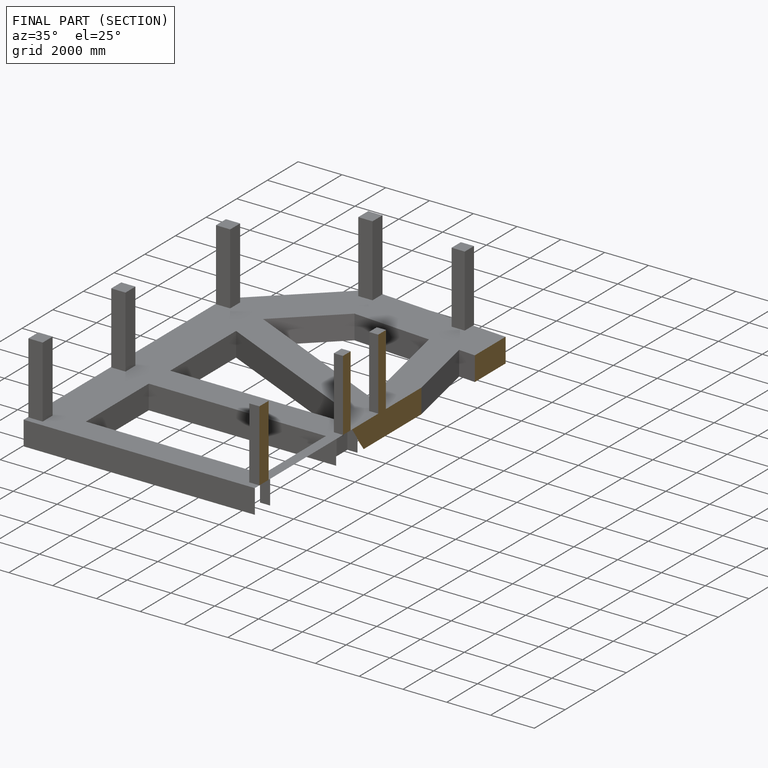
[diagram: finished part — half-section view (interior)]
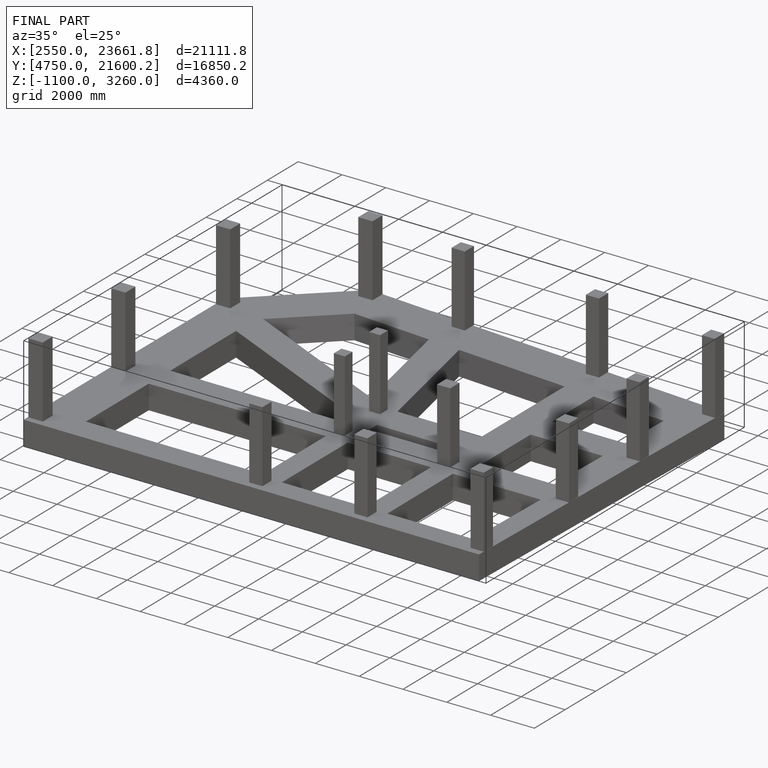
[diagram: finished part — iso view with bounding-box wireframe]
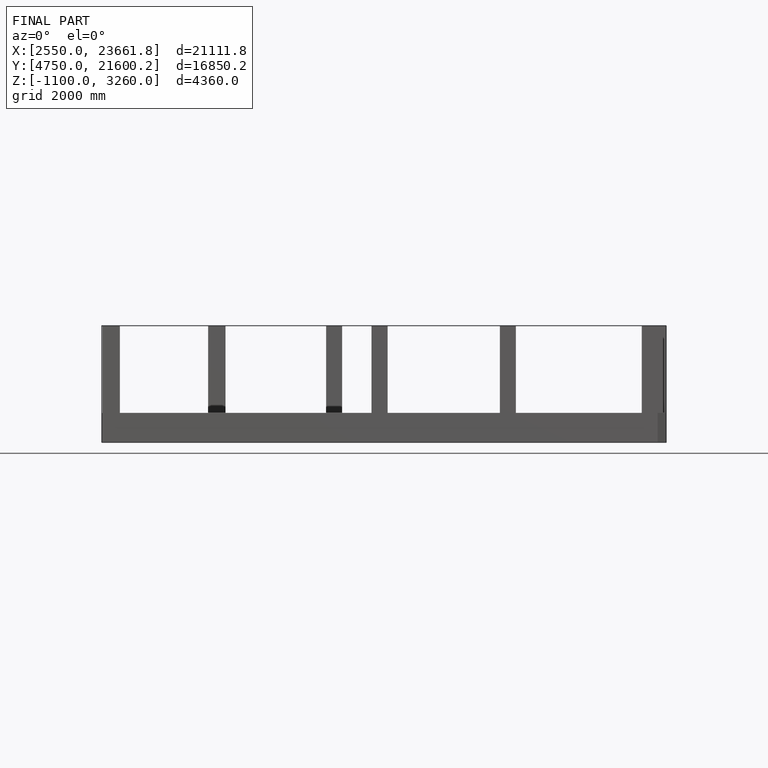
[diagram: finished part — front view with bounding-box wireframe]
